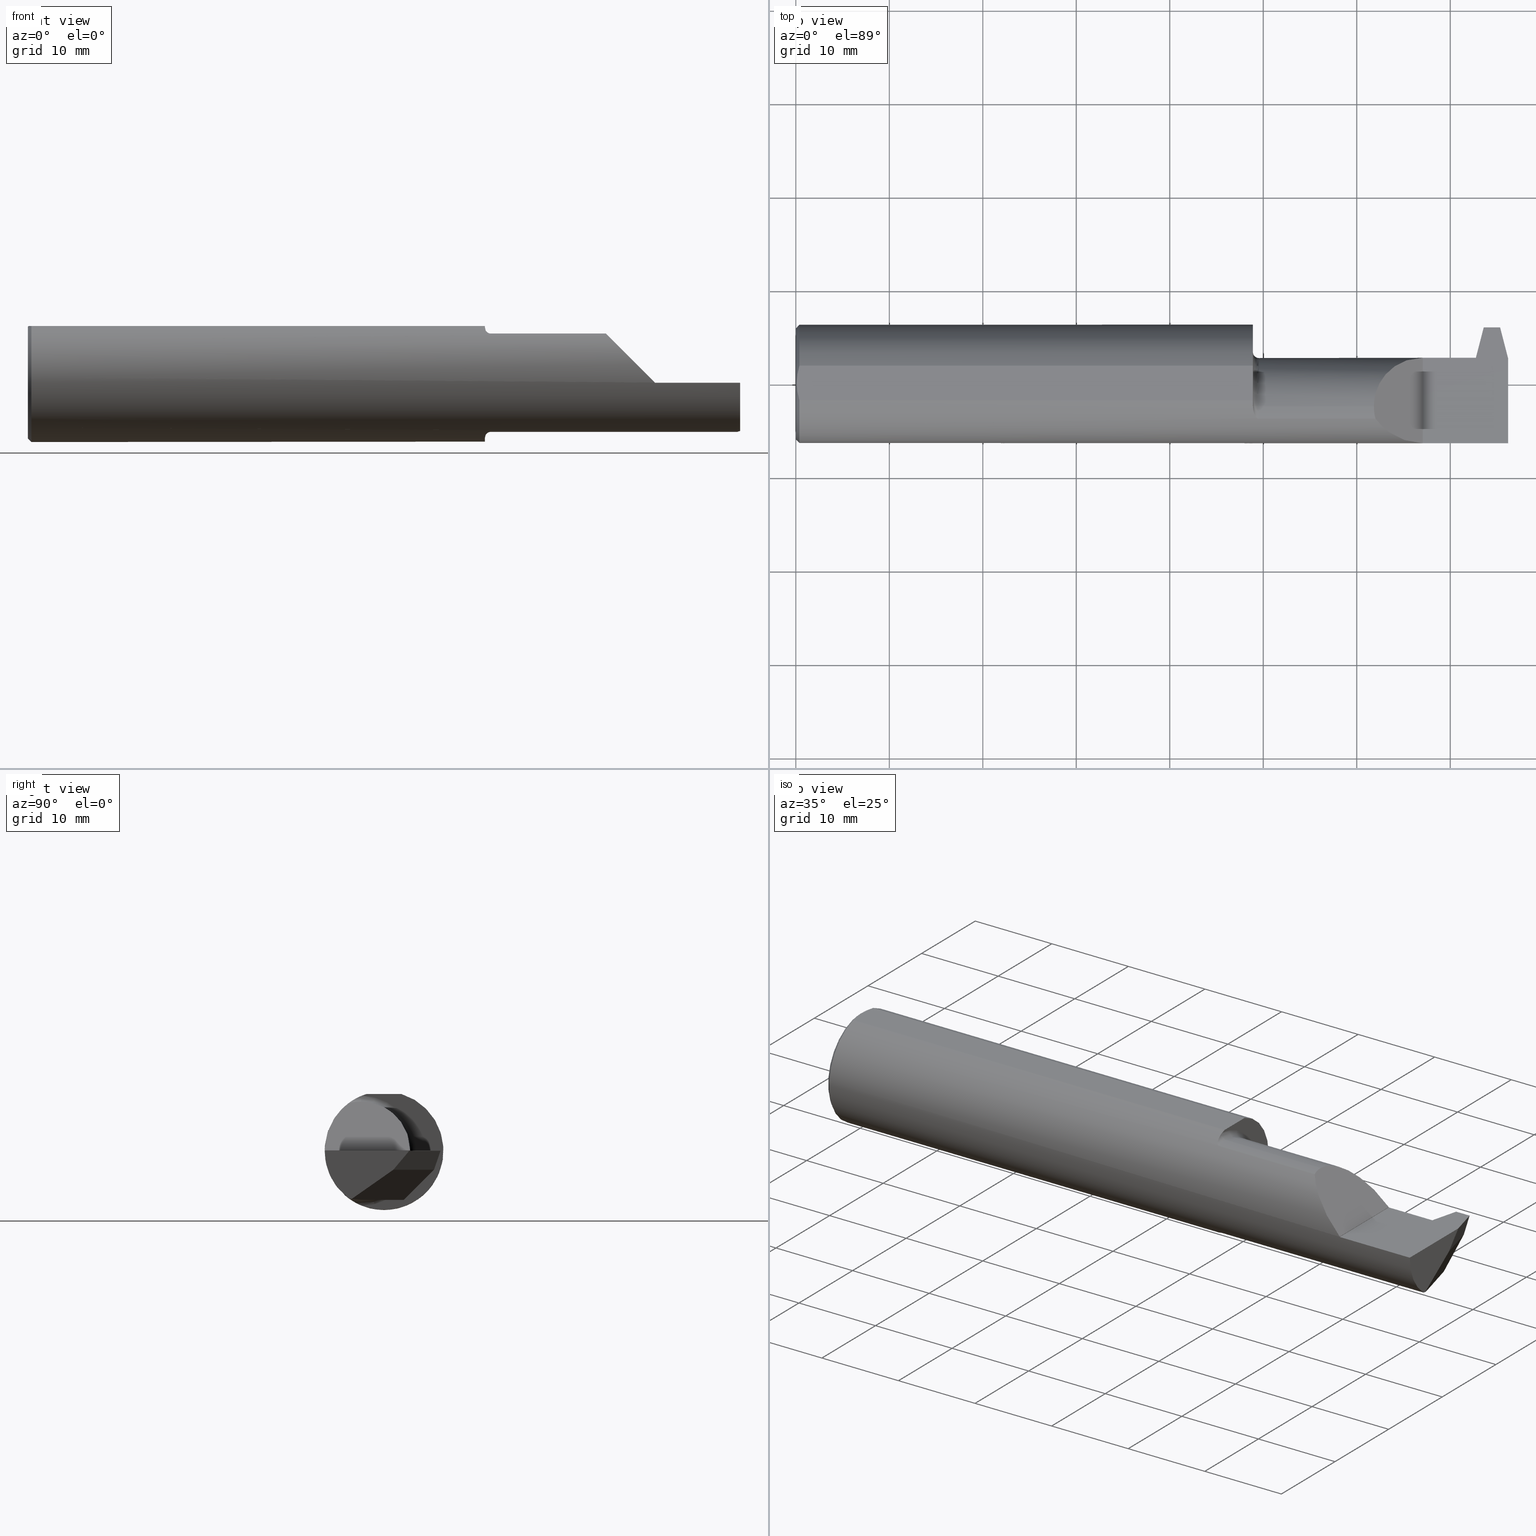
[diagram: canonical four-view strip — front | top / right | iso, engineering-drawing reading convention]
A machine part, canonical four-view strip (front | top / right | iso — engineering-drawing reading convention). The complete STEP part file that produces these views, byte-faithful:
ISO-10303-21;
HEADER;
FILE_DESCRIPTION (( 'STEP AP203' ),
    '1' );
FILE_NAME ('231072-FAT4901000-5.STEP',
    '2024-05-24T15:40:06',
    ( '' ),
    ( '' ),
    'SwSTEP 2.0',
    'SolidWorks 2022',
    '' );
FILE_SCHEMA (( 'CONFIG_CONTROL_DESIGN' ));
ENDSEC;

DATA;
#1 = VECTOR ( 'NONE', #708, 39.37007874015748143 ) ;
#2 = DIRECTION ( 'NONE',  ( 0.000000000000000000, -1.000000000000000000, 0.000000000000000000 ) ) ;
#3 = DIRECTION ( 'NONE',  ( 0.2503800040544334471, -0.9681476403781097417, 0.000000000000000000 ) ) ;
#4 = CALENDAR_DATE ( 2024, 24, 5 ) ;
#5 = VERTEX_POINT ( 'NONE', #46 ) ;
#6 = CARTESIAN_POINT ( 'NONE',  ( 2.795463962035230399, 0.8304646351436215657, -0.07999999999994880651 ) ) ;
#7 = CARTESIAN_POINT ( 'NONE',  ( 2.863896949202449527, 0.09334967799372900776, -0.07999999999999224398 ) ) ;
#8 = AXIS2_PLACEMENT_3D ( 'NONE', #371, #857, #209 ) ;
#9 = VECTOR ( 'NONE', #52, 39.37007874015748143 ) ;
#10 = EDGE_LOOP ( 'NONE', ( #453, #625 ) ) ;
#11 = EDGE_CURVE ( 'NONE', #18, #546, #97, .T. ) ;
#12 = ORIENTED_EDGE ( 'NONE', *, *, #883, .F. ) ;
#13 = ADVANCED_FACE ( 'NONE', ( #397 ), #762, .F. ) ;
#14 = ORGANIZATION ( 'UNSPECIFIED', 'UNSPECIFIED', '' ) ;
#15 = VECTOR ( 'NONE', #680, 39.37007874015748143 ) ;
#16 = PRODUCT_DEFINITION ( 'UNKNOWN', '', #134, #47 ) ;
#17 = CARTESIAN_POINT ( 'NONE',  ( 2.988377121087915977, -0.09685000000000003328, -0.2069999999999999341 ) ) ;
#18 = VERTEX_POINT ( 'NONE', #688 ) ;
#19 = CARTESIAN_POINT ( 'NONE',  ( 1.950000000000000178, -0.09684999999999999165, -0.2070000000000000173 ) ) ;
#20 = ORIENTED_EDGE ( 'NONE', *, *, #533, .F. ) ;
#21 = EDGE_CURVE ( 'NONE', #840, #251, #521, .T. ) ;
#22 = CARTESIAN_POINT ( 'NONE',  ( 1.925056834358316316, -0.09684999999998002151, -0.2303152187763627956 ) ) ;
#23 = EDGE_CURVE ( 'NONE', #37, #337, #227, .T. ) ;
#24 = DIRECTION ( 'NONE',  ( 0.000000000000000000, 0.000000000000000000, -1.000000000000000000 ) ) ;
#25 = CARTESIAN_POINT ( 'NONE',  ( 1.925361372780716840, -0.1075719347965366363, -0.2258065311153257260 ) ) ;
#26 = VECTOR ( 'NONE', #48, 39.37007874015748143 ) ;
#27 = CARTESIAN_POINT ( 'NONE',  ( 2.856905148354085711, 0.09266310188211818177, -0.08326934739156957588 ) ) ;
#28 = FACE_OUTER_BOUND ( 'NONE', #162, .T. ) ;
#29 = EDGE_LOOP ( 'NONE', ( #788, #193, #409, #207 ) ) ;
#30 = DIRECTION ( 'NONE',  ( 0.000000000000000000, -0.8191520442889890230, -0.5735764363510501562 ) ) ;
#31 = DIRECTION ( 'NONE',  ( 1.000000000000000000, 0.000000000000000000, 0.000000000000000000 ) ) ;
#32 = ORIENTED_EDGE ( 'NONE', *, *, #887, .F. ) ;
#33 = AXIS2_PLACEMENT_3D ( 'NONE', #520, #2, #293 ) ;
#34 = FACE_OUTER_BOUND ( 'NONE', #805, .T. ) ;
#35 = ORIENTED_EDGE ( 'NONE', *, *, #696, .F. ) ;
#36 = DIRECTION ( 'NONE',  ( 0.000000000000000000, 0.000000000000000000, -1.000000000000000000 ) ) ;
#37 = VERTEX_POINT ( 'NONE', #773 ) ;
#38 = EDGE_CURVE ( 'NONE', #398, #763, #432, .T. ) ;
#39 = ORIENTED_EDGE ( 'NONE', *, *, #766, .T. ) ;
#40 = DIRECTION ( 'NONE',  ( 0.2503800040544335026, -0.9681476403781097417, 0.000000000000000000 ) ) ;
#41 = CARTESIAN_POINT ( 'NONE',  ( 1.939875278575877937, -0.1451430425960587578, 0.2033773245914853312 ) ) ;
#42 = ADVANCED_FACE ( 'NONE', ( #431 ), #68, .T. ) ;
#43 = CC_DESIGN_APPROVAL ( #906, ( #294 ) ) ;
#44 = ORIENTED_EDGE ( 'NONE', *, *, #791, .F. ) ;
#45 = DIRECTION ( 'NONE',  ( 1.000000000000000000, 0.000000000000000000, 0.000000000000000000 ) ) ;
#46 = CARTESIAN_POINT ( 'NONE',  ( 0.01500000000000188856, 0.000000000000000000, -0.2498499999999999888 ) ) ;
#47 = DESIGN_CONTEXT ( 'detailed design', #867, 'design' ) ;
#48 = DIRECTION ( 'NONE',  ( 0.000000000000000000, -1.000000000000000000, 0.000000000000000000 ) ) ;
#49 = VERTEX_POINT ( 'NONE', #212 ) ;
#50 = EDGE_CURVE ( 'NONE', #555, #874, #929, .T. ) ;
#51 = AXIS2_PLACEMENT_3D ( 'NONE', #847, #197, #40 ) ;
#52 = DIRECTION ( 'NONE',  ( -1.000000000000000000, -0.000000000000000000, -0.000000000000000000 ) ) ;
#53 = ORIENTED_EDGE ( 'NONE', *, *, #120, .T. ) ;
#54 = DIRECTION ( 'NONE',  ( 0.000000000000000000, 0.000000000000000000, 1.000000000000000000 ) ) ;
#55 = ORIENTED_EDGE ( 'NONE', *, *, #766, .F. ) ;
#56 = COORDINATED_UNIVERSAL_TIME_OFFSET ( 8, 0, .BEHIND. ) ;
#57 = DIRECTION ( 'NONE',  ( 1.000000000000000000, 0.000000000000000000, 0.000000000000000000 ) ) ;
#58 = CARTESIAN_POINT ( 'NONE',  ( 1.925362334957246402, -0.1076058103047661113, 0.2257922861036848194 ) ) ;
#59 = DIRECTION ( 'NONE',  ( 0.000000000000000000, 0.000000000000000000, -1.000000000000000000 ) ) ;
#60 = AXIS2_PLACEMENT_3D ( 'NONE', #247, #611, #900 ) ;
#61 = VERTEX_POINT ( 'NONE', #722 ) ;
#62 = CARTESIAN_POINT ( 'NONE',  ( 1.925000000000000266, 0.000000000000000000, 0.000000000000000000 ) ) ;
#63 = CARTESIAN_POINT ( 'NONE',  ( 1.925000000000000266, -0.09685000000000000553, 0.000000000000000000 ) ) ;
#64 = LINE ( 'NONE', #566, #808 ) ;
#65 = VERTEX_POINT ( 'NONE', #786 ) ;
#66 = DIRECTION ( 'NONE',  ( 0.000000000000000000, 0.000000000000000000, 1.000000000000000000 ) ) ;
#67 = CARTESIAN_POINT ( 'NONE',  ( 0.004000000000001630723, -8.838795635097487697E-18, 0.2388499999999999790 ) ) ;
#68 = CYLINDRICAL_SURFACE ( 'NONE', #587, 0.2070000000000000173 ) ;
#69 = CARTESIAN_POINT ( 'NONE',  ( 2.640000000000000124, 0.2999999999999999889, -6.123031769111886291E-17 ) ) ;
#70 = VERTEX_POINT ( 'NONE', #72 ) ;
#71 = DIRECTION ( 'NONE',  ( 0.000000000000000000, 1.000000000000000000, -1.224646799147353207E-16 ) ) ;
#72 = CARTESIAN_POINT ( 'NONE',  ( 1.925000000000000266, 0.07331916529803135518, 0.2388499999999999790 ) ) ;
#73 = CARTESIAN_POINT ( 'NONE',  ( 2.876905148354085728, 4.760531160170139664, 3.187995656012730716 ) ) ;
#74 = APPROVAL_DATE_TIME ( #944, #284 ) ;
#75 = CARTESIAN_POINT ( 'NONE',  ( 3.000000000000000444, 0.06262552473440174960, -0.05252660777181117346 ) ) ;
#76 = CIRCLE ( 'NONE', #315, 0.2498499999999999888 ) ;
#77 = CARTESIAN_POINT ( 'NONE',  ( 1.925056834358316316, -0.09684999999998002151, -0.2303152187763627956 ) ) ;
#78 = EDGE_CURVE ( 'NONE', #664, #742, #821, .T. ) ;
#79 = EDGE_LOOP ( 'NONE', ( #395, #577, #215, #417, #633, #486 ) ) ;
#80 = CARTESIAN_POINT ( 'NONE',  ( 3.000000000000000444, -0.08802511886252954720, -0.2069999999999999341 ) ) ;
#81 = DIRECTION ( 'NONE',  ( 1.000000000000000000, 0.000000000000000000, 0.000000000000000000 ) ) ;
#82 = VECTOR ( 'NONE', #368, 39.37007874015748143 ) ;
#83 = SECURITY_CLASSIFICATION_LEVEL ( 'unclassified' ) ;
#84 = VECTOR ( 'NONE', #832, 39.37007874015748143 ) ;
#85 = ORIENTED_EDGE ( 'NONE', *, *, #662, .T. ) ;
#86 = VERTEX_POINT ( 'NONE', #218 ) ;
#87 =( GEOMETRIC_REPRESENTATION_CONTEXT ( 3 ) GLOBAL_UNCERTAINTY_ASSIGNED_CONTEXT ( ( #911 ) ) GLOBAL_UNIT_ASSIGNED_CONTEXT ( ( #499, #868, #578 ) ) REPRESENTATION_CONTEXT ( 'NONE', 'WORKASPACE' ) );
#88 = CARTESIAN_POINT ( 'NONE',  ( 1.950000000000000178, -0.1494886164171399245, -0.2001953447552894949 ) ) ;
#89 = EDGE_LOOP ( 'NONE', ( #912, #109, #498, #434, #285 ) ) ;
#90 = ADVANCED_FACE ( 'NONE', ( #267 ), #198, .F. ) ;
#91 = DIRECTION ( 'NONE',  ( -0.9116190025285768606, 0.2357607042868716807, -0.3367011798954093749 ) ) ;
#92 = LINE ( 'NONE', #180, #15 ) ;
#93 = LINE ( 'NONE', #677, #1 ) ;
#94 = VECTOR ( 'NONE', #741, 39.37007874015748143 ) ;
#95 = ORIENTED_EDGE ( 'NONE', *, *, #280, .F. ) ;
#96 = CARTESIAN_POINT ( 'NONE',  ( 2.991809236970782049, -0.1101210074274882600, -0.2069999999999999618 ) ) ;
#97 = LINE ( 'NONE', #327, #558 ) ;
#98 = VECTOR ( 'NONE', #341, 39.37007874015748143 ) ;
#99 = ADVANCED_FACE ( 'NONE', ( #707 ), #132, .F. ) ;
#100 = EDGE_LOOP ( 'NONE', ( #340, #831, #380, #621 ) ) ;
#101 = CARTESIAN_POINT ( 'NONE',  ( 0.01500000000000188856, 0.000000000000000000, -0.2498499999999999888 ) ) ;
#102 = DIRECTION ( 'NONE',  ( 0.000000000000000000, 0.000000000000000000, 1.000000000000000000 ) ) ;
#103 = ORIENTED_EDGE ( 'NONE', *, *, #280, .T. ) ;
#104 = DIRECTION ( 'NONE',  ( 1.000000000000000000, 0.000000000000000000, 0.000000000000000000 ) ) ;
#105 = DIRECTION ( 'NONE',  ( -0.000000000000000000, 5.769128905172341190E-16, 1.000000000000000000 ) ) ;
#106 = PRODUCT_RELATED_PRODUCT_CATEGORY ( 'detail', '', ( #614 ) ) ;
#107 = ADVANCED_FACE ( 'NONE', ( #127 ), #274, .F. ) ;
#108 = CC_DESIGN_PERSON_AND_ORGANIZATION_ASSIGNMENT ( #365, #147, ( #16 ) ) ;
#109 = ORIENTED_EDGE ( 'NONE', *, *, #116, .F. ) ;
#110 = PLANE ( 'NONE',  #51 ) ;
#111 = CARTESIAN_POINT ( 'NONE',  ( 1.947020367144871145, -0.1494886164171399245, 0.2001953447552894672 ) ) ;
#112 = ADVANCED_FACE ( 'NONE', ( #854 ), #205, .F. ) ;
#113 = VERTEX_POINT ( 'NONE', #935 ) ;
#114 = LINE ( 'NONE', #616, #9 ) ;
#115 = ORIENTED_EDGE ( 'NONE', *, *, #23, .F. ) ;
#116 = EDGE_CURVE ( 'NONE', #414, #769, #373, .T. ) ;
#117 = ORIENTED_EDGE ( 'NONE', *, *, #527, .T. ) ;
#118 = CARTESIAN_POINT ( 'NONE',  ( 2.856905148354085711, 0.09334967799372900776, -0.07999999999999224398 ) ) ;
#119 = DIRECTION ( 'NONE',  ( 0.000000000000000000, 1.814633329124812327E-15, -1.000000000000000000 ) ) ;
#120 = EDGE_CURVE ( 'NONE', #370, #667, #243, .T. ) ;
#121 = CARTESIAN_POINT ( 'NONE',  ( 1.925000000000000266, 0.1000000000000000056, 0.2388499999999999790 ) ) ;
#122 = ORIENTED_EDGE ( 'NONE', *, *, #630, .T. ) ;
#123 = APPROVAL_ROLE ( '' ) ;
#124 = VECTOR ( 'NONE', #706, 39.37007874015748143 ) ;
#125 = CARTESIAN_POINT ( 'NONE',  ( 0.01500000000000188509, -0.07331916529803116089, 0.2388499999999999790 ) ) ;
#126 = VECTOR ( 'NONE', #563, 39.37007874015748854 ) ;
#127 = FACE_OUTER_BOUND ( 'NONE', #643, .T. ) ;
#128 = DIRECTION ( 'NONE',  ( -1.000000000000000000, -0.000000000000000000, -0.000000000000000000 ) ) ;
#129 = ORIENTED_EDGE ( 'NONE', *, *, #545, .F. ) ;
#130 = CARTESIAN_POINT ( 'NONE',  ( 1.950000000000000178, -0.09685000000000000553, 0.000000000000000000 ) ) ;
#131 = CARTESIAN_POINT ( 'NONE',  ( 1.925000000000000266, -0.09685000000000000553, 0.000000000000000000 ) ) ;
#132 = PLANE ( 'NONE',  #897 ) ;
#133 = CARTESIAN_POINT ( 'NONE',  ( 2.826410051084567776, 0.09266310188211814014, -0.08326934739156964527 ) ) ;
#134 = PRODUCT_DEFINITION_FORMATION_WITH_SPECIFIED_SOURCE ( 'ANY', '', #614, .NOT_KNOWN. ) ;
#135 = AXIS2_PLACEMENT_3D ( 'NONE', #383, #104, #320 ) ;
#136 = VERTEX_POINT ( 'NONE', #909 ) ;
#137 = CARTESIAN_POINT ( 'NONE',  ( 2.856905148354085711, 0.1101499999999999702, 1.200550468588536438E-18 ) ) ;
#138 = DIRECTION ( 'NONE',  ( -0.000000000000000000, 0.000000000000000000, 1.000000000000000000 ) ) ;
#139 = LINE ( 'NONE', #656, #891 ) ;
#140 = ORIENTED_EDGE ( 'NONE', *, *, #493, .T. ) ;
#141 = CALENDAR_DATE ( 2024, 24, 5 ) ;
#142 = EDGE_CURVE ( 'NONE', #546, #86, #405, .T. ) ;
#143 = DIRECTION ( 'NONE',  ( 1.000000000000000000, 0.000000000000000000, 0.000000000000000000 ) ) ;
#144 = EDGE_CURVE ( 'NONE', #136, #337, #114, .T. ) ;
#145 = CARTESIAN_POINT ( 'NONE',  ( 1.933621117101777198, -0.1369789607150102562, 0.2090142917562188285 ) ) ;
#146 = PLANE ( 'NONE',  #641 ) ;
#147 = PERSON_AND_ORGANIZATION_ROLE ( 'creator' ) ;
#148 = CARTESIAN_POINT ( 'NONE',  ( 2.859999999999999876, -0.08773859972319995870, -0.2067993771388006996 ) ) ;
#149 = EDGE_CURVE ( 'NONE', #65, #664, #820, .T. ) ;
#150 = DIRECTION ( 'NONE',  ( -0.000000000000000000, 0.000000000000000000, -1.000000000000000000 ) ) ;
#151 = DATE_AND_TIME ( #376, #446 ) ;
#152 = ORIENTED_EDGE ( 'NONE', *, *, #38, .F. ) ;
#153 = ADVANCED_FACE ( 'NONE', ( #266 ), #764, .F. ) ;
#154 = DIRECTION ( 'NONE',  ( 0.000000000000000000, 0.000000000000000000, -1.000000000000000000 ) ) ;
#155 = AXIS2_PLACEMENT_3D ( 'NONE', #348, #922, #850 ) ;
#156 = LINE ( 'NONE', #590, #195 ) ;
#157 = ORIENTED_EDGE ( 'NONE', *, *, #943, .F. ) ;
#158 = CIRCLE ( 'NONE', #665, 0.2498499999999999888 ) ;
#159 = EDGE_LOOP ( 'NONE', ( #767, #305, #540, #809 ) ) ;
#160 = PRODUCT_DEFINITION_SHAPE ( 'NONE', 'NONE',  #16 ) ;
#161 = DIRECTION ( 'NONE',  ( 0.2503800040544089667, 0.9681476403781160700, 1.077610383360487399E-13 ) ) ;
#162 = EDGE_LOOP ( 'NONE', ( #482, #886, #95, #835, #12 ) ) ;
#163 = CIRCLE ( 'NONE', #692, 0.2070000000000000173 ) ;
#164 = EDGE_CURVE ( 'NONE', #370, #65, #190, .T. ) ;
#165 = PERSON ( 'UNSPECIFIED', 'UNSPECIFIED', 'UNSPECIFIED', ('UNSPECIFIED'), ('UNSPECIFIED'), ('UNSPECIFIED') ) ;
#166 = LINE ( 'NONE', #304, #544 ) ;
#167 = CARTESIAN_POINT ( 'NONE',  ( 0.000000000000000000, 0.000000000000000000, -0.2348499999999984211 ) ) ;
#168 = LINE ( 'NONE', #761, #471 ) ;
#169 = AXIS2_PLACEMENT_3D ( 'NONE', #694, #45, #772 ) ;
#170 = CARTESIAN_POINT ( 'NONE',  ( 1.925056834358316760, -0.09685000000000180964, 0.2303152187763536918 ) ) ;
#171 = DIRECTION ( 'NONE',  ( 1.000000000000000000, 0.000000000000000000, 0.000000000000000000 ) ) ;
#172 = EDGE_CURVE ( 'NONE', #667, #37, #487, .T. ) ;
#173 = CARTESIAN_POINT ( 'NONE',  ( 3.000000000000000444, -0.2498499999999999055, -6.123031769111886291E-17 ) ) ;
#174 = ORIENTED_EDGE ( 'NONE', *, *, #630, .F. ) ;
#175 = DIRECTION ( 'NONE',  ( 0.000000000000000000, 0.000000000000000000, -1.000000000000000000 ) ) ;
#176 = AXIS2_PLACEMENT_3D ( 'NONE', #759, #171, #24 ) ;
#177 = ADVANCED_FACE ( 'NONE', ( #255 ), #110, .F. ) ;
#178 = PLANE ( 'NONE',  #710 ) ;
#179 = ORIENTED_EDGE ( 'NONE', *, *, #211, .T. ) ;
#180 = CARTESIAN_POINT ( 'NONE',  ( 1.925000000000000044, 0.09266310188211666909, -0.08326934739157304532 ) ) ;
#181 = VERTEX_POINT ( 'NONE', #326 ) ;
#182 = ORIENTED_EDGE ( 'NONE', *, *, #257, .F. ) ;
#183 = CARTESIAN_POINT ( 'NONE',  ( 2.900103411012272758, 0.2501499999999999835, 0.000000000000000000 ) ) ;
#184 = ORIENTED_EDGE ( 'NONE', *, *, #382, .F. ) ;
#185 = VERTEX_POINT ( 'NONE', #118 ) ;
#186 = CARTESIAN_POINT ( 'NONE',  ( 3.000000000000000444, 0.08360379093681982732, -0.2070000000000000451 ) ) ;
#187 = ORIENTED_EDGE ( 'NONE', *, *, #650, .F. ) ;
#188 = EDGE_CURVE ( 'NONE', #701, #5, #609, .T. ) ;
#189 = ORIENTED_EDGE ( 'NONE', *, *, #216, .F. ) ;
#190 = LINE ( 'NONE', #700, #84 ) ;
#191 = CARTESIAN_POINT ( 'NONE',  ( 2.856905148354085711, -0.09685000000000000553, 0.000000000000000000 ) ) ;
#192 = LINE ( 'NONE', #571, #377 ) ;
#193 = ORIENTED_EDGE ( 'NONE', *, *, #662, .F. ) ;
#194 = PERSON_AND_ORGANIZATION ( #165, #14 ) ;
#195 = VECTOR ( 'NONE', #223, 39.37007874015748143 ) ;
#196 = CARTESIAN_POINT ( 'NONE',  ( 1.925000000000000266, -0.09282883324728960495, 0.2319651487140835522 ) ) ;
#197 = DIRECTION ( 'NONE',  ( -0.9474803064293680910, -0.2450350680735336462, 0.2055210070593989635 ) ) ;
#198 = PLANE ( 'NONE',  #338 ) ;
#199 = CARTESIAN_POINT ( 'NONE',  ( 2.843896949202449953, 0.1101499999999999563, 0.000000000000000000 ) ) ;
#200 = VERTEX_POINT ( 'NONE', #252 ) ;
#201 = CARTESIAN_POINT ( 'NONE',  ( 2.434350000000000680, -0.1146400775661694377, 0.2070000000000000451 ) ) ;
#202 = VECTOR ( 'NONE', #589, 39.37007874015748143 ) ;
#203 = LINE ( 'NONE', #272, #923 ) ;
#204 = AXIS2_PLACEMENT_3D ( 'NONE', #632, #903, #768 ) ;
#205 = PLANE ( 'NONE',  #666 ) ;
#206 = CARTESIAN_POINT ( 'NONE',  ( 0.000000000000000000, 2.967931517733600783E-17, 0.2348499999999984211 ) ) ;
#207 = ORIENTED_EDGE ( 'NONE', *, *, #885, .T. ) ;
#208 = PERSON_AND_ORGANIZATION ( #165, #14 ) ;
#209 = DIRECTION ( 'NONE',  ( 0.000000000000000000, 0.000000000000000000, 1.000000000000000000 ) ) ;
#210 =( BOUNDED_CURVE ( )  B_SPLINE_CURVE ( 3, ( #286, #201, #350, #220 ),
 .UNSPECIFIED., .F., .F. ) 
 B_SPLINE_CURVE_WITH_KNOTS ( ( 4, 4 ),
 ( 0.000000000000000000, 0.2571164291075390129 ),
 .UNSPECIFIED. ) 
 CURVE ( )  GEOMETRIC_REPRESENTATION_ITEM ( )  RATIONAL_B_SPLINE_CURVE ( ( 1.000000000000000000, 0.9944985117787172868, 0.9944985117787172868, 1.000000000000000000 ) ) 
 REPRESENTATION_ITEM ( '' )  );
#211 = EDGE_CURVE ( 'NONE', #555, #689, #551, .T. ) ;
#212 = CARTESIAN_POINT ( 'NONE',  ( 1.925056834358316316, -0.09684999999998002151, -0.2303152187763627956 ) ) ;
#213 = DIRECTION ( 'NONE',  ( -1.000000000000000000, 0.000000000000000000, 0.000000000000000000 ) ) ;
#214 = VECTOR ( 'NONE', #128, 39.37007874015748143 ) ;
#215 = ORIENTED_EDGE ( 'NONE', *, *, #781, .T. ) ;
#216 = EDGE_CURVE ( 'NONE', #113, #18, #495, .T. ) ;
#217 = CARTESIAN_POINT ( 'NONE',  ( 1.925056834358316760, -0.09685000000000180964, 0.2303152187763536918 ) ) ;
#218 = CARTESIAN_POINT ( 'NONE',  ( 2.897000000000000242, 0.2381499999999928674, -6.123031769111886291E-17 ) ) ;
#219 = CARTESIAN_POINT ( 'NONE',  ( 0.000000000000000000, 0.000000000000000000, 0.000000000000000000 ) ) ;
#220 = CARTESIAN_POINT ( 'NONE',  ( 2.441154655244710980, -0.1494886164171400911, 0.2001953447552893839 ) ) ;
#221 = CARTESIAN_POINT ( 'NONE',  ( 2.639999999999999236, 0.2381499999999971973, -6.123031769111886291E-17 ) ) ;
#222 = AXIS2_PLACEMENT_3D ( 'NONE', #509, #793, #36 ) ;
#223 = DIRECTION ( 'NONE',  ( -1.000000000000000000, -0.000000000000000000, -0.000000000000000000 ) ) ;
#224 = ADVANCED_FACE ( 'NONE', ( #483 ), #408, .T. ) ;
#225 = VERTEX_POINT ( 'NONE', #339 ) ;
#226 = DIRECTION ( 'NONE',  ( -1.000000000000000000, -8.537024980200908593E-16, 5.140971450490672194E-31 ) ) ;
#227 = CIRCLE ( 'NONE', #699, 0.2070000000000000173 ) ;
#228 = LINE ( 'NONE', #585, #444 ) ;
#229 = CIRCLE ( 'NONE', #879, 0.2320000000000000118 ) ;
#230 = ORIENTED_EDGE ( 'NONE', *, *, #750, .T. ) ;
#231 = AXIS2_PLACEMENT_3D ( 'NONE', #807, #374, #363 ) ;
#232 = ORIENTED_EDGE ( 'NONE', *, *, #21, .F. ) ;
#233 = CARTESIAN_POINT ( 'NONE',  ( 1.925000000000000266, -0.09282883324728960495, -0.2319651487140835522 ) ) ;
#234 = ORIENTED_EDGE ( 'NONE', *, *, #462, .F. ) ;
#235 = CC_DESIGN_PERSON_AND_ORGANIZATION_ASSIGNMENT ( #448, #734, ( #134 ) ) ;
#236 = CARTESIAN_POINT ( 'NONE',  ( 0.01500000000000188856, 0.07331916529803116089, 0.2388499999999999790 ) ) ;
#237 = CARTESIAN_POINT ( 'NONE',  ( 2.843896949202449953, 0.1101499999999999563, 0.000000000000000000 ) ) ;
#238 = ADVANCED_FACE ( 'NONE', ( #626 ), #913, .T. ) ;
#239 = CARTESIAN_POINT ( 'NONE',  ( 2.863896949202449527, 0.1101499999999999702, 0.000000000000000000 ) ) ;
#240 = PLANE ( 'NONE',  #594 ) ;
#241 = TOROIDAL_SURFACE ( 'NONE', #403, 0.2320000000000000118, 0.02500000000000000139 ) ;
#242 = ADVANCED_FACE ( 'NONE', ( #675 ), #755, .F. ) ;
#243 = CIRCLE ( 'NONE', #222, 0.2498499999999999888 ) ;
#244 = CARTESIAN_POINT ( 'NONE',  ( 2.863896949202449527, 0.1101499999999999702, -6.842741670802552310E-19 ) ) ;
#245 = LINE ( 'NONE', #281, #790 ) ;
#246 = ORIENTED_EDGE ( 'NONE', *, *, #785, .T. ) ;
#247 = CARTESIAN_POINT ( 'NONE',  ( 1.950000000000000178, -0.09685000000000000553, 0.000000000000000000 ) ) ;
#248 = ORIENTED_EDGE ( 'NONE', *, *, #556, .F. ) ;
#249 = LOCAL_TIME ( 8, 40, 6.000000000000000000, #428 ) ;
#250 = AXIS2_PLACEMENT_3D ( 'NONE', #569, #603, #318 ) ;
#251 = VERTEX_POINT ( 'NONE', #469 ) ;
#252 = CARTESIAN_POINT ( 'NONE',  ( 3.000000000000000444, 0.1066817547734303651, 0.000000000000000000 ) ) ;
#253 = ORIENTED_EDGE ( 'NONE', *, *, #449, .F. ) ;
#254 = ORIENTED_EDGE ( 'NONE', *, *, #116, .T. ) ;
#255 = FACE_OUTER_BOUND ( 'NONE', #400, .T. ) ;
#256 = ORIENTED_EDGE ( 'NONE', *, *, #287, .F. ) ;
#257 = EDGE_CURVE ( 'NONE', #756, #519, #634, .T. ) ;
#258 = ORIENTED_EDGE ( 'NONE', *, *, #624, .T. ) ;
#259 = CARTESIAN_POINT ( 'NONE',  ( 2.859999999999999876, 0.1101499999999999979, 0.000000000000000000 ) ) ;
#260 = ORIENTED_EDGE ( 'NONE', *, *, #437, .T. ) ;
#261 = DIRECTION ( 'NONE',  ( 0.2013133534504506772, 0.2013133534504514544, 0.9586166425871539554 ) ) ;
#262 = ORIENTED_EDGE ( 'NONE', *, *, #599, .F. ) ;
#263 = CALENDAR_DATE ( 2024, 24, 5 ) ;
#264 = CLOSED_SHELL ( 'NONE', ( #391, #242, #421, #907, #42, #485, #13, #803, #238, #153, #99, #224, #177, #591, #90, #676, #112, #481, #588, #818, #728, #461, #107, #312, #715, #415, #381, #298 ) ) ;
#265 = DIRECTION ( 'NONE',  ( -1.000000000000000000, -0.000000000000000000, -0.000000000000000000 ) ) ;
#266 = FACE_OUTER_BOUND ( 'NONE', #924, .T. ) ;
#267 = FACE_OUTER_BOUND ( 'NONE', #610, .T. ) ;
#268 = DIRECTION ( 'NONE',  ( 0.000000000000000000, -0.8191520442889890230, -0.5735764363510501562 ) ) ;
#269 = ORIENTED_EDGE ( 'NONE', *, *, #889, .F. ) ;
#270 = CARTESIAN_POINT ( 'NONE',  ( 2.434350000000000680, -0.09685000000000000553, 0.2070000000000000173 ) ) ;
#271 = VECTOR ( 'NONE', #261, 39.37007874015748854 ) ;
#272 = CARTESIAN_POINT ( 'NONE',  ( 2.900103411012272758, 0.2501499999999999835, 0.000000000000000000 ) ) ;
#273 = EDGE_CURVE ( 'NONE', #505, #301, #229, .T. ) ;
#274 = PLANE ( 'NONE',  #536 ) ;
#275 = CARTESIAN_POINT ( 'NONE',  ( 3.000000000000000444, -0.09685000000000000553, 0.000000000000000000 ) ) ;
#276 = ORIENTED_EDGE ( 'NONE', *, *, #720, .T. ) ;
#277 = DIRECTION ( 'NONE',  ( 1.000000000000000000, 0.000000000000000000, 0.000000000000000000 ) ) ;
#278 = CC_DESIGN_PERSON_AND_ORGANIZATION_ASSIGNMENT ( #738, #729, ( #294 ) ) ;
#279 = AXIS2_PLACEMENT_3D ( 'NONE', #898, #314, #102 ) ;
#280 = EDGE_CURVE ( 'NONE', #61, #572, #834, .T. ) ;
#281 = CARTESIAN_POINT ( 'NONE',  ( 3.000000000000000444, 0.05060993510442526183, -0.07227847794073193055 ) ) ;
#282 = CARTESIAN_POINT ( 'NONE',  ( 0.000000000000000000, 0.000000000000000000, 0.000000000000000000 ) ) ;
#283 = DIRECTION ( 'NONE',  ( 0.07805664651022488354, -0.7049493456751224629, -0.7049493456751303455 ) ) ;
#284 = APPROVAL ( #506, 'UNSPECIFIED' ) ;
#285 = ORIENTED_EDGE ( 'NONE', *, *, #493, .F. ) ;
#286 = CARTESIAN_POINT ( 'NONE',  ( 2.434350000000000680, -0.09685000000000000553, 0.2070000000000000173 ) ) ;
#287 = EDGE_CURVE ( 'NONE', #756, #689, #748, .T. ) ;
#288 = FACE_OUTER_BOUND ( 'NONE', #321, .T. ) ;
#289 = CARTESIAN_POINT ( 'NONE',  ( 1.926763007424507457, -0.1178923264691399686, 0.2205715275921999452 ) ) ;
#290 = LINE ( 'NONE', #73, #352 ) ;
#291 = VECTOR ( 'NONE', #936, 39.37007874015748143 ) ;
#292 = CARTESIAN_POINT ( 'NONE',  ( 2.434350000000000236, 0.02378168701430510151, 0.2070000000000000173 ) ) ;
#293 = DIRECTION ( 'NONE',  ( 0.000000000000000000, 0.000000000000000000, -1.000000000000000000 ) ) ;
#294 = SECURITY_CLASSIFICATION ( '', '', #83 ) ;
#295 = EDGE_CURVE ( 'NONE', #325, #546, #168, .T. ) ;
#296 = CARTESIAN_POINT ( 'NONE',  ( 2.988377121087915977, -0.09685000000000003328, -0.2069999999999999341 ) ) ;
#297 = ORIENTED_EDGE ( 'NONE', *, *, #23, .T. ) ;
#298 = ADVANCED_FACE ( 'NONE', ( #817 ), #604, .T. ) ;
#299 = DIRECTION ( 'NONE',  ( 0.000000000000000000, 0.000000000000000000, -1.000000000000000000 ) ) ;
#300 = DIRECTION ( 'NONE',  ( 1.000000000000000000, 8.537024980200913523E-16, -5.906448813158318790E-32 ) ) ;
#301 = VERTEX_POINT ( 'NONE', #233 ) ;
#302 = AXIS2_PLACEMENT_3D ( 'NONE', #62, #631, #784 ) ;
#303 = ORIENTED_EDGE ( 'NONE', *, *, #387, .F. ) ;
#304 = CARTESIAN_POINT ( 'NONE',  ( 2.859999999999999876, 0.1422105680985483733, -0.04578723642496119323 ) ) ;
#305 = ORIENTED_EDGE ( 'NONE', *, *, #11, .F. ) ;
#306 = EDGE_CURVE ( 'NONE', #689, #18, #671, .T. ) ;
#307 = LINE ( 'NONE', #597, #94 ) ;
#308 = APPROVAL_ROLE ( '' ) ;
#309 = ORIENTED_EDGE ( 'NONE', *, *, #812, .F. ) ;
#310 = APPLICATION_CONTEXT ( 'configuration controlled 3d designs of mechanical parts and assemblies' ) ;
#311 = CARTESIAN_POINT ( 'NONE',  ( 1.931527936142123592, -0.1322095316791235264, -0.2120777013314376347 ) ) ;
#312 = ADVANCED_FACE ( 'NONE', ( #537 ), #541, .F. ) ;
#313 = EDGE_CURVE ( 'NONE', #916, #615, #166, .T. ) ;
#314 = DIRECTION ( 'NONE',  ( -1.000000000000000000, -0.000000000000000000, -0.000000000000000000 ) ) ;
#315 = AXIS2_PLACEMENT_3D ( 'NONE', #472, #539, #59 ) ;
#316 = DIRECTION ( 'NONE',  ( -0.000000000000000000, 0.000000000000000000, 1.000000000000000000 ) ) ;
#317 = DIRECTION ( 'NONE',  ( 0.000000000000000000, 0.000000000000000000, 1.000000000000000000 ) ) ;
#318 = DIRECTION ( 'NONE',  ( 0.000000000000000000, 0.000000000000000000, -1.000000000000000000 ) ) ;
#319 = ORIENTED_EDGE ( 'NONE', *, *, #313, .F. ) ;
#320 = DIRECTION ( 'NONE',  ( 0.000000000000000000, 0.000000000000000000, -1.000000000000000000 ) ) ;
#321 = EDGE_LOOP ( 'NONE', ( #530, #559, #404, #827, #637, #670, #349, #586, #129, #470, #765, #246, #407, #484, #695, #739 ) ) ;
#322 = AXIS2_PLACEMENT_3D ( 'NONE', #584, #71, #430 ) ;
#323 = ORIENTED_EDGE ( 'NONE', *, *, #344, .T. ) ;
#324 = CYLINDRICAL_SURFACE ( 'NONE', #896, 0.2070000000000000173 ) ;
#325 = VERTEX_POINT ( 'NONE', #894 ) ;
#326 = CARTESIAN_POINT ( 'NONE',  ( 2.640000000000000124, 0.1101499999999999702, -6.123031769111885058E-17 ) ) ;
#327 = CARTESIAN_POINT ( 'NONE',  ( 2.850128570000003414, 0.2106037909368215222, -0.07999999999999690692 ) ) ;
#328 = LOCAL_TIME ( 8, 40, 6.000000000000000000, #56 ) ;
#329 = ORIENTED_EDGE ( 'NONE', *, *, #889, .T. ) ;
#330 = DIRECTION ( 'NONE',  ( 1.000000000000000000, 0.000000000000000000, 0.000000000000000000 ) ) ;
#331 = CARTESIAN_POINT ( 'NONE',  ( 1.938126455499453504, -0.1431912086441300413, 0.2047622941394795781 ) ) ;
#332 = EDGE_LOOP ( 'NONE', ( #309, #276, #85, #553, #319, #838 ) ) ;
#333 = CARTESIAN_POINT ( 'NONE',  ( 2.392500000000000071, -0.1494886164171399245, -0.2001953447552894949 ) ) ;
#334 = ORIENTED_EDGE ( 'NONE', *, *, #344, .F. ) ;
#335 = B_SPLINE_CURVE_WITH_KNOTS ( 'NONE', 3,
 ( #217, #440, #655, #726 ),
 .UNSPECIFIED., .F., .F.,
 ( 4, 4 ),
 ( 0.001785983475866874436, 0.001896829427359323760 ),
 .UNSPECIFIED. ) ;
#336 = CARTESIAN_POINT ( 'NONE',  ( 2.863896949202449527, 0.1101499999999999702, 0.000000000000000000 ) ) ;
#337 = VERTEX_POINT ( 'NONE', #19 ) ;
#338 = AXIS2_PLACEMENT_3D ( 'NONE', #712, #496, #358 ) ;
#339 = CARTESIAN_POINT ( 'NONE',  ( 1.950000000000000178, -0.09685000000000000553, 0.2070000000000000173 ) ) ;
#340 = ORIENTED_EDGE ( 'NONE', *, *, #682, .F. ) ;
#341 = DIRECTION ( 'NONE',  ( -0.1571540165094715835, 0.2029672248372561827, 0.9664920696709329295 ) ) ;
#342 = ORIENTED_EDGE ( 'NONE', *, *, #606, .T. ) ;
#343 = APPROVAL_DATE_TIME ( #705, #480 ) ;
#344 = EDGE_CURVE ( 'NONE', #370, #200, #307, .T. ) ;
#345 = CARTESIAN_POINT ( 'NONE',  ( 0.004000000000001630723, -8.838795635097487697E-18, 0.2388499999999999790 ) ) ;
#346 = VECTOR ( 'NONE', #531, 39.37007874015748854 ) ;
#347 = DIRECTION ( 'NONE',  ( 0.000000000000000000, -0.2055210070593990190, -0.9786527043120508695 ) ) ;
#348 = CARTESIAN_POINT ( 'NONE',  ( 2.835000000000000409, 0.2906037909368175409, 0.000000000000000000 ) ) ;
#349 = ORIENTED_EDGE ( 'NONE', *, *, #38, .T. ) ;
#350 = CARTESIAN_POINT ( 'NONE',  ( 2.436630766022311434, -0.1322833472790598819, 0.2047192339776892356 ) ) ;
#351 = EDGE_CURVE ( 'NONE', #49, #37, #620, .T. ) ;
#352 = VECTOR ( 'NONE', #799, 39.37007874015748143 ) ;
#353 = CARTESIAN_POINT ( 'NONE',  ( 3.000000000000000444, -0.1363579360798492235, -0.2031947907469837944 ) ) ;
#354 = CARTESIAN_POINT ( 'NONE',  ( 2.640000000000000124, 0.2999999999999999889, -6.123031769111886291E-17 ) ) ;
#355 = CARTESIAN_POINT ( 'NONE',  ( 2.837854847910429967, 0.1101499999999999979, -0.02877135945258273153 ) ) ;
#356 = VERTEX_POINT ( 'NONE', #237 ) ;
#357 = LINE ( 'NONE', #80, #934 ) ;
#358 = DIRECTION ( 'NONE',  ( -1.000000000000000000, 0.000000000000000000, 0.000000000000000000 ) ) ;
#359 = FACE_OUTER_BOUND ( 'NONE', #593, .T. ) ;
#360 = ORIENTED_EDGE ( 'NONE', *, *, #917, .T. ) ;
#361 = LENGTH_MEASURE_WITH_UNIT ( LENGTH_MEASURE( 0.02539999999999999897 ), #435 );
#362 = DIRECTION ( 'NONE',  ( -0.000000000000000000, 1.000000000000000000, -0.000000000000000000 ) ) ;
#363 = DIRECTION ( 'NONE',  ( 0.000000000000000000, 0.000000000000000000, -1.000000000000000000 ) ) ;
#364 = EDGE_CURVE ( 'NONE', #840, #814, #92, .T. ) ;
#365 = PERSON_AND_ORGANIZATION ( #165, #14 ) ;
#366 = ORIENTED_EDGE ( 'NONE', *, *, #750, .F. ) ;
#367 = AXIS2_PLACEMENT_3D ( 'NONE', #219, #860, #794 ) ;
#368 = DIRECTION ( 'NONE',  ( -0.2503800040544219563, 0.9681476403781128504, 5.650365557287442810E-14 ) ) ;
#369 = CARTESIAN_POINT ( 'NONE',  ( 1.925019000533665592, -0.09551797825495939032, -0.2308753480925707924 ) ) ;
#370 = VERTEX_POINT ( 'NONE', #173 ) ;
#371 = CARTESIAN_POINT ( 'NONE',  ( 3.000000000000000444, 0.000000000000000000, 0.000000000000000000 ) ) ;
#372 = VECTOR ( 'NONE', #473, 39.37007874015748143 ) ;
#373 = CIRCLE ( 'NONE', #873, 0.2348499999999984211 ) ;
#374 = DIRECTION ( 'NONE',  ( 1.000000000000000000, 0.000000000000000000, 0.000000000000000000 ) ) ;
#375 = ORIENTED_EDGE ( 'NONE', *, *, #452, .T. ) ;
#376 = CALENDAR_DATE ( 2024, 24, 5 ) ;
#377 = VECTOR ( 'NONE', #490, 39.37007874015748143 ) ;
#378 = TOROIDAL_SURFACE ( 'NONE', #176, 0.2320000000000000118, 0.02500000000000000139 ) ;
#379 = CC_DESIGN_PERSON_AND_ORGANIZATION_ASSIGNMENT ( #744, #881, ( #134 ) ) ;
#380 = ORIENTED_EDGE ( 'NONE', *, *, #149, .F. ) ;
#381 = ADVANCED_FACE ( 'NONE', ( #389 ), #240, .T. ) ;
#382 = EDGE_CURVE ( 'NONE', #519, #709, #245, .T. ) ;
#383 = CARTESIAN_POINT ( 'NONE',  ( 2.856905148354085711, 4.760531160170139664, 3.187995656012730716 ) ) ;
#384 = COORDINATED_UNIVERSAL_TIME_OFFSET ( 8, 0, .BEHIND. ) ;
#385 = ORIENTED_EDGE ( 'NONE', *, *, #287, .T. ) ;
#386 = CARTESIAN_POINT ( 'NONE',  ( 2.963839195668922066, 0.2834708276858486919, -0.007132963250968961735 ) ) ;
#387 = EDGE_CURVE ( 'NONE', #479, #86, #203, .T. ) ;
#388 = DIRECTION ( 'NONE',  ( 1.000000000000000000, 0.000000000000000000, 0.000000000000000000 ) ) ;
#389 = FACE_OUTER_BOUND ( 'NONE', #332, .T. ) ;
#390 = AXIS2_PLACEMENT_3D ( 'NONE', #824, #105, #681 ) ;
#391 = ADVANCED_FACE ( 'NONE', ( #751 ), #378, .F. ) ;
#392 = LINE ( 'NONE', #504, #271 ) ;
#393 = CARTESIAN_POINT ( 'NONE',  ( 1.950000000000000178, -0.1494886164171399245, 0.2001953447552894949 ) ) ;
#394 = CIRCLE ( 'NONE', #789, 0.2069999999999999618 ) ;
#395 = ORIENTED_EDGE ( 'NONE', *, *, #606, .F. ) ;
#396 = CARTESIAN_POINT ( 'NONE',  ( 0.008000051362619074735, 0.04946541355466502199, 0.2388499999999999790 ) ) ;
#397 = FACE_OUTER_BOUND ( 'NONE', #735, .T. ) ;
#398 = VERTEX_POINT ( 'NONE', #393 ) ;
#399 = PLANE ( 'NONE',  #811 ) ;
#400 = EDGE_LOOP ( 'NONE', ( #714, #189, #230, #760 ) ) ;
#401 = DIRECTION ( 'NONE',  ( -0.9786527043120508695, -3.055463344878836037E-15, 0.2055210070593990190 ) ) ;
#402 = DIRECTION ( 'NONE',  ( -1.000000000000000000, -0.000000000000000000, -0.000000000000000000 ) ) ;
#403 = AXIS2_PLACEMENT_3D ( 'NONE', #927, #57, #893 ) ;
#404 = ORIENTED_EDGE ( 'NONE', *, *, #164, .T. ) ;
#405 = LINE ( 'NONE', #413, #126 ) ;
#406 = ORIENTED_EDGE ( 'NONE', *, *, #295, .F. ) ;
#407 = ORIENTED_EDGE ( 'NONE', *, *, #892, .T. ) ;
#408 = PLANE ( 'NONE',  #169 ) ;
#409 = ORIENTED_EDGE ( 'NONE', *, *, #295, .T. ) ;
#410 = LINE ( 'NONE', #841, #580 ) ;
#411 = EDGE_LOOP ( 'NONE', ( #375, #629, #360, #920, #157, #856, #679, #647, #595, #683, #672 ) ) ;
#412 = EDGE_LOOP ( 'NONE', ( #122, #303, #44, #234, #910, #904, #323, #366 ) ) ;
#413 = CARTESIAN_POINT ( 'NONE',  ( 2.920156025113222586, 0.1757926836392792458, -0.1810987964774560255 ) ) ;
#414 = VERTEX_POINT ( 'NONE', #167 ) ;
#415 = ADVANCED_FACE ( 'NONE', ( #822 ), #178, .T. ) ;
#416 = CARTESIAN_POINT ( 'NONE',  ( 1.925000000000000266, -0.09685000000000000553, 0.000000000000000000 ) ) ;
#417 = ORIENTED_EDGE ( 'NONE', *, *, #791, .T. ) ;
#418 = CALENDAR_DATE ( 2024, 24, 5 ) ;
#419 = VECTOR ( 'NONE', #836, 39.37007874015748143 ) ;
#420 = FACE_OUTER_BOUND ( 'NONE', #693, .T. ) ;
#421 = ADVANCED_FACE ( 'NONE', ( #28 ), #830, .T. ) ;
#422 = FACE_OUTER_BOUND ( 'NONE', #159, .T. ) ;
#423 = ORIENTED_EDGE ( 'NONE', *, *, #273, .F. ) ;
#424 = LINE ( 'NONE', #826, #372 ) ;
#425 = VECTOR ( 'NONE', #815, 39.37007874015748854 ) ;
#426 = CARTESIAN_POINT ( 'NONE',  ( 2.560176953520660437, -0.2494150432560469088, 0.08117304647933933082 ) ) ;
#427 = ORIENTED_EDGE ( 'NONE', *, *, #522, .T. ) ;
#428 = COORDINATED_UNIVERSAL_TIME_OFFSET ( 8, 0, .BEHIND. ) ;
#429 = DIMENSIONAL_EXPONENTS ( 1.000000000000000000, 0.000000000000000000, 0.000000000000000000, 0.000000000000000000, 0.000000000000000000, 0.000000000000000000, 0.000000000000000000 ) ;
#430 = DIRECTION ( 'NONE',  ( 0.000000000000000000, 0.000000000000000000, 1.000000000000000000 ) ) ;
#431 = FACE_OUTER_BOUND ( 'NONE', #450, .T. ) ;
#432 = B_SPLINE_CURVE_WITH_KNOTS ( 'NONE', 3,
 ( #612, #111, #691, #41, #331, #145, #438, #289, #58, #717 ),
 .UNSPECIFIED., .F., .F.,
 ( 4, 2, 2, 2, 4 ),
 ( 0.000000000000000000, 0.0002232479344833600363, 0.0004464958689667200727, 0.0008929917379334389527, 0.001785983475866874436 ),
 .UNSPECIFIED. ) ;
#433 = CARTESIAN_POINT ( 'NONE',  ( 2.640000000000000124, -0.2498463527850666721, 0.001349999999999153743 ) ) ;
#434 = ORIENTED_EDGE ( 'NONE', *, *, #188, .F. ) ;
#435 =( LENGTH_UNIT ( ) NAMED_UNIT ( * ) SI_UNIT ( $, .METRE. ) );
#436 = CARTESIAN_POINT ( 'NONE',  ( 2.907229123799221160, 0.2106037909368385919, -0.07999999999997881028 ) ) ;
#437 = EDGE_CURVE ( 'NONE', #301, #70, #905, .T. ) ;
#438 = CARTESIAN_POINT ( 'NONE',  ( 1.931579487302564013, -0.1323357243723022603, 0.2119991103425290235 ) ) ;
#439 = CARTESIAN_POINT ( 'NONE',  ( 2.941708597587972207, 0.08360379093681981344, -0.2070000000000000728 ) ) ;
#440 = CARTESIAN_POINT ( 'NONE',  ( 1.925018912949717720, -0.09551489467185736437, 0.2308766447720728143 ) ) ;
#441 = LINE ( 'NONE', #7, #730 ) ;
#442 = APPROVAL_DATE_TIME ( #151, #906 ) ;
#443 = EDGE_LOOP ( 'NONE', ( #902, #567, #269 ) ) ;
#444 = VECTOR ( 'NONE', #81, 39.37007874015748143 ) ;
#445 = CARTESIAN_POINT ( 'NONE',  ( 1.925000000000000266, 0.000000000000000000, 0.000000000000000000 ) ) ;
#446 = LOCAL_TIME ( 8, 40, 6.000000000000000000, #592 ) ;
#447 = DIRECTION ( 'NONE',  ( 0.000000000000000000, 0.000000000000000000, 1.000000000000000000 ) ) ;
#448 = PERSON_AND_ORGANIZATION ( #165, #14 ) ;
#449 = EDGE_CURVE ( 'NONE', #225, #398, #508, .T. ) ;
#450 = EDGE_LOOP ( 'NONE', ( #851, #117, #878, #427 ) ) ;
#451 = CIRCLE ( 'NONE', #33, 0.02500000000000000486 ) ;
#452 = EDGE_CURVE ( 'NONE', #916, #136, #778, .T. ) ;
#453 = ORIENTED_EDGE ( 'NONE', *, *, #869, .T. ) ;
#454 = CC_DESIGN_PERSON_AND_ORGANIZATION_ASSIGNMENT ( #208, #568, ( #614 ) ) ;
#455 = CARTESIAN_POINT ( 'NONE',  ( 1.925000000000000266, -0.09685000000000000553, 0.000000000000000000 ) ) ;
#456 = SHAPE_DEFINITION_REPRESENTATION ( #160, #940 ) ;
#457 = VECTOR ( 'NONE', #557, 39.37007874015748143 ) ;
#458 = ORIENTED_EDGE ( 'NONE', *, *, #273, .T. ) ;
#459 = CC_DESIGN_APPROVAL ( #480, ( #134 ) ) ;
#460 = CARTESIAN_POINT ( 'NONE',  ( 1.938098364138955754, -0.1431579111149089145, -0.2047855815810830926 ) ) ;
#461 = ADVANCED_FACE ( 'NONE', ( #674 ), #241, .F. ) ;
#462 = EDGE_CURVE ( 'NONE', #181, #356, #424, .T. ) ;
#463 = DIRECTION ( 'NONE',  ( 0.000000000000000000, 0.8191520442889890230, 0.5735764363510501562 ) ) ;
#464 = AXIS2_PLACEMENT_3D ( 'NONE', #478, #839, #690 ) ;
#465 = CARTESIAN_POINT ( 'NONE',  ( 1.944219481832199170, -0.1482797491967531300, -0.2011020871690758494 ) ) ;
#466 = LINE ( 'NONE', #895, #214 ) ;
#467 = CARTESIAN_POINT ( 'NONE',  ( 2.927918530547692466, 4.957785273113228364, 3.187995656012730716 ) ) ;
#468 = VERTEX_POINT ( 'NONE', #535 ) ;
#469 = CARTESIAN_POINT ( 'NONE',  ( 2.856905148354085711, -0.08773859972320258160, -0.2067993771388023372 ) ) ;
#470 = ORIENTED_EDGE ( 'NONE', *, *, #696, .T. ) ;
#471 = VECTOR ( 'NONE', #161, 39.37007874015748854 ) ;
#472 = CARTESIAN_POINT ( 'NONE',  ( 0.01500000000000188856, 0.000000000000000000, 0.000000000000000000 ) ) ;
#473 = DIRECTION ( 'NONE',  ( 1.000000000000000000, 0.000000000000000000, 0.000000000000000000 ) ) ;
#474 = ORIENTED_EDGE ( 'NONE', *, *, #306, .T. ) ;
#475 = DIRECTION ( 'NONE',  ( -1.000000000000000000, -0.000000000000000000, -0.000000000000000000 ) ) ;
#476 = EDGE_LOOP ( 'NONE', ( #342, #861, #232 ) ) ;
#477 = ORIENTED_EDGE ( 'NONE', *, *, #747, .T. ) ;
#478 = CARTESIAN_POINT ( 'NONE',  ( 2.640000000000000124, 0.000000000000000000, 0.000000000000000000 ) ) ;
#479 = VERTEX_POINT ( 'NONE', #239 ) ;
#480 = APPROVAL ( #492, 'UNSPECIFIED' ) ;
#481 = ADVANCED_FACE ( 'NONE', ( #420 ), #399, .F. ) ;
#482 = ORIENTED_EDGE ( 'NONE', *, *, #747, .F. ) ;
#483 = FACE_OUTER_BOUND ( 'NONE', #833, .T. ) ;
#484 = ORIENTED_EDGE ( 'NONE', *, *, #437, .F. ) ;
#485 = ADVANCED_FACE ( 'NONE', ( #34 ), #324, .T. ) ;
#486 = ORIENTED_EDGE ( 'NONE', *, *, #720, .F. ) ;
#487 = LINE ( 'NONE', #333, #780 ) ;
#488 = DIRECTION ( 'NONE',  ( 0.000000000000000000, 0.000000000000000000, -1.000000000000000000 ) ) ;
#489 = CIRCLE ( 'NONE', #367, 0.2348499999999984211 ) ;
#490 = DIRECTION ( 'NONE',  ( 1.000000000000000000, 0.000000000000000000, 0.000000000000000000 ) ) ;
#491 = ORIENTED_EDGE ( 'NONE', *, *, #78, .F. ) ;
#492 = APPROVAL_STATUS ( 'not_yet_approved' ) ;
#493 = EDGE_CURVE ( 'NONE', #572, #701, #649, .T. ) ;
#494 = CARTESIAN_POINT ( 'NONE',  ( 0.004000000000001633325, -0.02498450228869505615, 0.2388499999999999790 ) ) ;
#495 = LINE ( 'NONE', #622, #419 ) ;
#496 = DIRECTION ( 'NONE',  ( -0.000000000000000000, 0.000000000000000000, -1.000000000000000000 ) ) ;
#497 = DIRECTION ( 'NONE',  ( 1.000000000000000000, -0.000000000000000000, -0.000000000000000000 ) ) ;
#498 = ORIENTED_EDGE ( 'NONE', *, *, #883, .T. ) ;
#499 =( CONVERSION_BASED_UNIT ( 'INCH', #361 ) LENGTH_UNIT ( ) NAMED_UNIT ( #429 ) );
#500 = AXIS2_PLACEMENT_3D ( 'NONE', #870, #651, #299 ) ;
#501 = AXIS2_PLACEMENT_3D ( 'NONE', #183, #547, #919 ) ;
#502 = DIRECTION ( 'NONE',  ( 0.2503800040544308936, 0.9681476403781105189, -0.000000000000000000 ) ) ;
#503 = DIRECTION ( 'NONE',  ( -0.2503800040544464922, -0.9681476403781065221, 5.547658068578855695E-16 ) ) ;
#504 = CARTESIAN_POINT ( 'NONE',  ( 2.843896949202449953, 0.1101499999999999563, 0.000000000000000000 ) ) ;
#505 = VERTEX_POINT ( 'NONE', #196 ) ;
#506 = APPROVAL_STATUS ( 'not_yet_approved' ) ;
#507 = CARTESIAN_POINT ( 'NONE',  ( 2.859999999999999876, -0.08802511886252863127, -0.2070000000000000173 ) ) ;
#508 = CIRCLE ( 'NONE', #523, 0.2070000000000000173 ) ;
#509 = CARTESIAN_POINT ( 'NONE',  ( 3.000000000000000444, 0.000000000000000000, 0.000000000000000000 ) ) ;
#510 =( BOUNDED_CURVE ( )  B_SPLINE_CURVE ( 3, ( #925, #724, #292, #270 ),
 .UNSPECIFIED., .F., .F. ) 
 B_SPLINE_CURVE_WITH_KNOTS ( ( 4, 4 ),
 ( 4.718910765747615699, 6.283185307179586232 ),
 .UNSPECIFIED. ) 
 CURVE ( )  GEOMETRIC_REPRESENTATION_ITEM ( )  RATIONAL_B_SPLINE_CURVE ( ( 1.000000000000000000, 0.8062725446327774215, 0.8062725446327774215, 1.000000000000000000 ) ) 
 REPRESENTATION_ITEM ( '' )  );
#511 = CARTESIAN_POINT ( 'NONE',  ( 3.000000000000000444, -0.1494886164171398690, -0.2001953447552895227 ) ) ;
#512 = ORIENTED_EDGE ( 'NONE', *, *, #618, .F. ) ;
#513 = CYLINDRICAL_SURFACE ( 'NONE', #8, 0.2498499999999999888 ) ;
#514 = DIRECTION ( 'NONE',  ( -1.600052266976115523E-14, -0.9455185755993169572, 0.3255681544571564223 ) ) ;
#515 = LINE ( 'NONE', #518, #602 ) ;
#516 = PERSON_AND_ORGANIZATION ( #165, #14 ) ;
#517 = DIRECTION ( 'NONE',  ( -1.000000000000000000, 1.692248368533555199E-14, 0.000000000000000000 ) ) ;
#518 = CARTESIAN_POINT ( 'NONE',  ( 0.01500000000000188856, 3.059780027669661931E-17, 0.2498499999999999888 ) ) ;
#519 = VERTEX_POINT ( 'NONE', #353 ) ;
#520 = CARTESIAN_POINT ( 'NONE',  ( 1.950000000000000178, -0.09685000000000000553, -0.2320000000000000118 ) ) ;
#521 = CIRCLE ( 'NONE', #636, 0.2070000000000000173 ) ;
#522 = EDGE_CURVE ( 'NONE', #398, #742, #644, .T. ) ;
#523 = AXIS2_PLACEMENT_3D ( 'NONE', #746, #388, #608 ) ;
#524 = DIRECTION ( 'NONE',  ( -1.000000000000000000, -0.000000000000000000, -0.000000000000000000 ) ) ;
#525 = ORIENTED_EDGE ( 'NONE', *, *, #351, .F. ) ;
#526 = AXIS2_PLACEMENT_3D ( 'NONE', #915, #635, #175 ) ;
#527 = EDGE_CURVE ( 'NONE', #627, #225, #639, .T. ) ;
#528 = ORIENTED_EDGE ( 'NONE', *, *, #172, .T. ) ;
#529 = CARTESIAN_POINT ( 'NONE',  ( 0.004000000000001628989, 0.02507688590673098211, 0.2388499999999999790 ) ) ;
#530 = ORIENTED_EDGE ( 'NONE', *, *, #172, .F. ) ;
#531 = DIRECTION ( 'NONE',  ( -0.2503800040544417183, 0.9681476403781076323, -5.547658068578872458E-16 ) ) ;
#532 = AXIS2_PLACEMENT_3D ( 'NONE', #932, #66, #277 ) ;
#533 = EDGE_CURVE ( 'NONE', #200, #709, #797, .T. ) ;
#534 = CARTESIAN_POINT ( 'NONE',  ( 2.931712946219820815, 0.1222541069740939734, -0.2070000000000000728 ) ) ;
#535 = CARTESIAN_POINT ( 'NONE',  ( 2.640000000000000124, 0.1101455977792765439, 0.001349999999999153743 ) ) ;
#536 = AXIS2_PLACEMENT_3D ( 'NONE', #570, #514, #640 ) ;
#537 = FACE_OUTER_BOUND ( 'NONE', #10, .T. ) ;
#538 = DIRECTION ( 'NONE',  ( -1.000000000000000000, 2.580935849722114087E-14, 2.580935849722143117E-14 ) ) ;
#539 = DIRECTION ( 'NONE',  ( 1.000000000000000000, -0.000000000000000000, -0.000000000000000000 ) ) ;
#540 = ORIENTED_EDGE ( 'NONE', *, *, #306, .F. ) ;
#541 = PLANE ( 'NONE',  #638 ) ;
#542 = CARTESIAN_POINT ( 'NONE',  ( 2.876905148354085728, 4.760531160170139664, 3.187995656012730716 ) ) ;
#543 = CC_DESIGN_APPROVAL ( #284, ( #16 ) ) ;
#544 = VECTOR ( 'NONE', #30, 39.37007874015748143 ) ;
#545 = EDGE_CURVE ( 'NONE', #882, #505, #158, .T. ) ;
#546 = VERTEX_POINT ( 'NONE', #436 ) ;
#547 = DIRECTION ( 'NONE',  ( 0.9474803064293687571, -0.2450350680735310649, 0.2055210070593990190 ) ) ;
#548 = ORIENTED_EDGE ( 'NONE', *, *, #216, .T. ) ;
#549 = CC_DESIGN_DATE_AND_TIME_ASSIGNMENT ( #560, #843, ( #16 ) ) ;
#550 = ORIENTED_EDGE ( 'NONE', *, *, #142, .T. ) ;
#551 = LINE ( 'NONE', #186, #737 ) ;
#552 = ORIENTED_EDGE ( 'NONE', *, *, #921, .T. ) ;
#553 = ORIENTED_EDGE ( 'NONE', *, *, #556, .T. ) ;
#554 = DIRECTION ( 'NONE',  ( -1.000000000000000000, 0.000000000000000000, -0.000000000000000000 ) ) ;
#555 = VERTEX_POINT ( 'NONE', #939 ) ;
#556 = EDGE_CURVE ( 'NONE', #874, #615, #357, .T. ) ;
#557 = DIRECTION ( 'NONE',  ( 0.000000000000000000, -1.000000000000000000, 0.000000000000000000 ) ) ;
#558 = VECTOR ( 'NONE', #538, 39.37007874015748143 ) ;
#559 = ORIENTED_EDGE ( 'NONE', *, *, #120, .F. ) ;
#560 = DATE_AND_TIME ( #263, #668 ) ;
#561 = DIRECTION ( 'NONE',  ( -0.7071067811865494601, 0.000000000000000000, -0.7071067811865456854 ) ) ;
#562 = EDGE_CURVE ( 'NONE', #709, #18, #574, .T. ) ;
#563 = DIRECTION ( 'NONE',  ( -0.1200238624775788326, 0.3232146245633332193, 0.9386834284807347162 ) ) ;
#564 = CARTESIAN_POINT ( 'NONE',  ( 2.939875603841132445, 0.1554635659609680531, -0.2070000000000000728 ) ) ;
#565 = VECTOR ( 'NONE', #825, 39.37007874015748143 ) ;
#566 = CARTESIAN_POINT ( 'NONE',  ( 2.856905148354085711, 4.760531160170139664, 3.187995656012730716 ) ) ;
#567 = ORIENTED_EDGE ( 'NONE', *, *, #313, .T. ) ;
#568 = PERSON_AND_ORGANIZATION_ROLE ( 'design_owner' ) ;
#569 = CARTESIAN_POINT ( 'NONE',  ( 0.01500000000000188856, 0.000000000000000000, 0.000000000000000000 ) ) ;
#570 = CARTESIAN_POINT ( 'NONE',  ( 2.850128569999999417, 0.1730363691085702871, -0.1891037151198403932 ) ) ;
#571 = CARTESIAN_POINT ( 'NONE',  ( 3.000000000000000444, 0.07331916529803135518, 0.2388499999999998957 ) ) ;
#572 = VERTEX_POINT ( 'NONE', #67 ) ;
#573 = VECTOR ( 'NONE', #517, 39.37007874015748143 ) ;
#574 = LINE ( 'NONE', #6, #82 ) ;
#575 = DIRECTION ( 'NONE',  ( -1.000000000000000000, -0.000000000000000000, -0.000000000000000000 ) ) ;
#576 = CARTESIAN_POINT ( 'NONE',  ( 2.441154655244710980, -0.1494886164171400911, 0.2001953447552893839 ) ) ;
#577 = ORIENTED_EDGE ( 'NONE', *, *, #364, .T. ) ;
#578 =( NAMED_UNIT ( * ) SI_UNIT ( $, .STERADIAN. ) SOLID_ANGLE_UNIT ( ) );
#579 = LINE ( 'NONE', #875, #736 ) ;
#580 = VECTOR ( 'NONE', #283, 39.37007874015748854 ) ;
#581 = CC_DESIGN_DATE_AND_TIME_ASSIGNMENT ( #669, #598, ( #294 ) ) ;
#582 = CARTESIAN_POINT ( 'NONE',  ( 2.640000000000000124, -0.2498463527850666721, 0.001349999999999153743 ) ) ;
#583 = FACE_OUTER_BOUND ( 'NONE', #596, .T. ) ;
#584 = CARTESIAN_POINT ( 'NONE',  ( 1.950000000000000178, -0.09684999999999996390, 0.2320000000000000118 ) ) ;
#585 = CARTESIAN_POINT ( 'NONE',  ( 1.925000000000000266, -0.08773859972320162404, -0.2067993771388007551 ) ) ;
#586 = ORIENTED_EDGE ( 'NONE', *, *, #618, .T. ) ;
#587 = AXIS2_PLACEMENT_3D ( 'NONE', #63, #652, #798 ) ;
#588 = ADVANCED_FACE ( 'NONE', ( #732 ), #721, .F. ) ;
#589 = DIRECTION ( 'NONE',  ( -0.000000000000000000, 0.2055210070593990190, 0.9786527043120508695 ) ) ;
#590 = CARTESIAN_POINT ( 'NONE',  ( 3.000000000000000444, -0.07331916529803135518, 0.2388499999999998957 ) ) ;
#591 = ADVANCED_FACE ( 'NONE', ( #288 ), #513, .T. ) ;
#592 = COORDINATED_UNIVERSAL_TIME_OFFSET ( 8, 0, .BEHIND. ) ;
#593 = EDGE_LOOP ( 'NONE', ( #182, #385, #474, #659, #184 ) ) ;
#594 = AXIS2_PLACEMENT_3D ( 'NONE', #542, #816, #463 ) ;
#595 = ORIENTED_EDGE ( 'NONE', *, *, #364, .F. ) ;
#596 = EDGE_LOOP ( 'NONE', ( #704, #458, #260, #39 ) ) ;
#597 = CARTESIAN_POINT ( 'NONE',  ( 3.000000000000000444, 0.2999999999999999889, -6.123031769111886291E-17 ) ) ;
#598 = DATE_TIME_ROLE ( 'classification_date' ) ;
#599 = EDGE_CURVE ( 'NONE', #225, #763, #607, .T. ) ;
#600 = MANIFOLD_SOLID_BREP ( 'Cut-Sweep1', #264 ) ;
#601 = CARTESIAN_POINT ( 'NONE',  ( 1.939804601073712664, -0.1450778299404785754, -0.2034240810360764262 ) ) ;
#602 = VECTOR ( 'NONE', #876, 39.37007874015748143 ) ;
#603 = DIRECTION ( 'NONE',  ( 1.000000000000000000, -0.000000000000000000, -0.000000000000000000 ) ) ;
#604 = PLANE ( 'NONE',  #135 ) ;
#605 = LINE ( 'NONE', #646, #457 ) ;
#606 = EDGE_CURVE ( 'NONE', #840, #185, #716, .T. ) ;
#607 = CIRCLE ( 'NONE', #322, 0.02500000000000000486 ) ;
#608 = DIRECTION ( 'NONE',  ( 0.000000000000000000, 0.000000000000000000, -1.000000000000000000 ) ) ;
#609 = CIRCLE ( 'NONE', #204, 0.2498499999999999888 ) ;
#610 = EDGE_LOOP ( 'NONE', ( #55, #617, #103, #140, #35 ) ) ;
#611 = DIRECTION ( 'NONE',  ( 1.000000000000000000, 0.000000000000000000, 0.000000000000000000 ) ) ;
#612 = CARTESIAN_POINT ( 'NONE',  ( 1.950000000000000178, -0.1494886164171399245, 0.2001953447552894949 ) ) ;
#613 = EDGE_CURVE ( 'NONE', #65, #181, #579, .T. ) ;
#614 = PRODUCT ( '231072-FAT4901000-5', '231072-FAT4901000-5', '', ( #648 ) ) ;
#615 = VERTEX_POINT ( 'NONE', #507 ) ;
#616 = CARTESIAN_POINT ( 'NONE',  ( 1.925000000000000266, -0.09684999999999999165, -0.2070000000000000173 ) ) ;
#617 = ORIENTED_EDGE ( 'NONE', *, *, #892, .F. ) ;
#618 = EDGE_CURVE ( 'NONE', #763, #505, #335, .T. ) ;
#619 = APPROVAL_PERSON_ORGANIZATION ( #516, #284, #938 ) ;
#620 = B_SPLINE_CURVE_WITH_KNOTS ( 'NONE', 3,
 ( #22, #25, #888, #311, #828, #460, #601, #465, #890, #88 ),
 .UNSPECIFIED., .F., .F.,
 ( 4, 2, 2, 2, 4 ),
 ( 0.0001090155944137358965, 0.0009865223614607978014, 0.001425275744984329587, 0.001644652436746094504, 0.001864029128507859422 ),
 .UNSPECIFIED. ) ;
#621 = ORIENTED_EDGE ( 'NONE', *, *, #613, .T. ) ;
#622 = CARTESIAN_POINT ( 'NONE',  ( 2.940499545582626162, 0.1694793237647091722, -0.1994341248998635074 ) ) ;
#623 = EDGE_LOOP ( 'NONE', ( #262, #899, #258, #187, #423, #512 ) ) ;
#624 = EDGE_CURVE ( 'NONE', #337, #49, #451, .T. ) ;
#625 = ORIENTED_EDGE ( 'NONE', *, *, #781, .F. ) ;
#626 = FACE_OUTER_BOUND ( 'NONE', #443, .T. ) ;
#627 = VERTEX_POINT ( 'NONE', #792 ) ;
#628 = PLANE ( 'NONE',  #155 ) ;
#629 = ORIENTED_EDGE ( 'NONE', *, *, #144, .T. ) ;
#630 = EDGE_CURVE ( 'NONE', #113, #86, #806, .T. ) ;
#631 = DIRECTION ( 'NONE',  ( 1.000000000000000000, 0.000000000000000000, 0.000000000000000000 ) ) ;
#632 = CARTESIAN_POINT ( 'NONE',  ( 0.01500000000000188856, 0.000000000000000000, 0.000000000000000000 ) ) ;
#633 = ORIENTED_EDGE ( 'NONE', *, *, #800, .F. ) ;
#634 =( BOUNDED_CURVE ( )  B_SPLINE_CURVE ( 3, ( #17, #96, #823, #673 ),
 .UNSPECIFIED., .F., .F. ) 
 B_SPLINE_CURVE_WITH_KNOTS ( ( 4, 4 ),
 ( 0.6108652381980214097, 0.8029030024377743491 ),
 .UNSPECIFIED. ) 
 CURVE ( )  GEOMETRIC_REPRESENTATION_ITEM ( )  RATIONAL_B_SPLINE_CURVE ( ( 1.000000000000000000, 0.9969291518527066964, 0.9969291518527066964, 1.000000000000000000 ) ) 
 REPRESENTATION_ITEM ( '' )  );
#635 = DIRECTION ( 'NONE',  ( 1.000000000000000000, -0.000000000000000000, -0.000000000000000000 ) ) ;
#636 = AXIS2_PLACEMENT_3D ( 'NONE', #191, #402, #119 ) ;
#637 = ORIENTED_EDGE ( 'NONE', *, *, #78, .T. ) ;
#638 = AXIS2_PLACEMENT_3D ( 'NONE', #753, #401, #813 ) ;
#639 = LINE ( 'NONE', #711, #684 ) ;
#640 = DIRECTION ( 'NONE',  ( 0.000000000000000000, -0.3255681544571563668, -0.9455185755993168462 ) ) ;
#641 = AXIS2_PLACEMENT_3D ( 'NONE', #69, #150, #213 ) ;
#642 = CARTESIAN_POINT ( 'NONE',  ( 2.876905148354085728, -0.08802511886253158724, -0.2070000000000019047 ) ) ;
#643 = EDGE_LOOP ( 'NONE', ( #548, #908, #550, #174 ) ) ;
#644 = LINE ( 'NONE', #852, #124 ) ;
#645 = DIRECTION ( 'NONE',  ( -1.000000000000000000, 0.000000000000000000, -0.000000000000000000 ) ) ;
#646 = CARTESIAN_POINT ( 'NONE',  ( 2.640000000000000124, 0.2999999999999999889, 0.001349999999999153743 ) ) ;
#647 = ORIENTED_EDGE ( 'NONE', *, *, #869, .F. ) ;
#648 = MECHANICAL_CONTEXT ( 'NONE', #310, 'mechanical' ) ;
#649 = B_SPLINE_CURVE_WITH_KNOTS ( 'NONE', 3,
 ( #345, #494, #777, #125 ),
 .UNSPECIFIED., .F., .F.,
 ( 4, 4 ),
 ( 0.007106848166584502080, 0.008972081732692345837 ),
 .UNSPECIFIED. ) ;
#650 = EDGE_CURVE ( 'NONE', #301, #49, #858, .T. ) ;
#651 = DIRECTION ( 'NONE',  ( 1.000000000000000000, 0.000000000000000000, 0.000000000000000000 ) ) ;
#652 = DIRECTION ( 'NONE',  ( -1.000000000000000000, -0.000000000000000000, -0.000000000000000000 ) ) ;
#653 = CARTESIAN_POINT ( 'NONE',  ( 0.01500000000000188509, -0.07331916529803116089, 0.2388499999999999790 ) ) ;
#654 = APPLICATION_PROTOCOL_DEFINITION ( 'international standard', 'config_control_design', 1994, #867 ) ;
#655 = CARTESIAN_POINT ( 'NONE',  ( 1.925000000000000266, -0.09417450869096334609, 0.2314266303976112160 ) ) ;
#656 = CARTESIAN_POINT ( 'NONE',  ( 2.962896588987727675, 0.2501499999999999835, 0.000000000000000000 ) ) ;
#657 = COORDINATED_UNIVERSAL_TIME_OFFSET ( 8, 0, .BEHIND. ) ;
#658 = EDGE_CURVE ( 'NONE', #769, #572, #515, .T. ) ;
#659 = ORIENTED_EDGE ( 'NONE', *, *, #562, .F. ) ;
#660 = APPROVAL_PERSON_ORGANIZATION ( #872, #906, #308 ) ;
#661 = CARTESIAN_POINT ( 'NONE',  ( 1.925000000000000266, -0.09282883324728960495, -0.2319651487140835522 ) ) ;
#662 = EDGE_CURVE ( 'NONE', #325, #874, #290, .T. ) ;
#663 = CARTESIAN_POINT ( 'NONE',  ( 2.935081469452308855, 0.8665721776455905800, 0.3232974061439788938 ) ) ;
#664 = VERTEX_POINT ( 'NONE', #433 ) ;
#665 = AXIS2_PLACEMENT_3D ( 'NONE', #445, #143, #154 ) ;
#666 = AXIS2_PLACEMENT_3D ( 'NONE', #354, #645, #138 ) ;
#667 = VERTEX_POINT ( 'NONE', #511 ) ;
#668 = LOCAL_TIME ( 8, 40, 6.000000000000000000, #657 ) ;
#669 = DATE_AND_TIME ( #4, #849 ) ;
#670 = ORIENTED_EDGE ( 'NONE', *, *, #522, .F. ) ;
#671 = LINE ( 'NONE', #386, #425 ) ;
#672 = ORIENTED_EDGE ( 'NONE', *, *, #725, .T. ) ;
#673 = CARTESIAN_POINT ( 'NONE',  ( 3.000000000000000444, -0.1363579360798492235, -0.2031947907469837944 ) ) ;
#674 = FACE_OUTER_BOUND ( 'NONE', #829, .T. ) ;
#675 = FACE_OUTER_BOUND ( 'NONE', #623, .T. ) ;
#676 = ADVANCED_FACE ( 'NONE', ( #723 ), #146, .F. ) ;
#677 = CARTESIAN_POINT ( 'NONE',  ( 2.859999999999999876, 0.1399143398655047776, -0.2070000000000000728 ) ) ;
#678 = DIRECTION ( 'NONE',  ( -0.000000000000000000, 0.8191520442889890230, 0.5735764363510502672 ) ) ;
#679 = ORIENTED_EDGE ( 'NONE', *, *, #462, .T. ) ;
#680 = DIRECTION ( 'NONE',  ( -1.000000000000000000, -0.000000000000000000, -0.000000000000000000 ) ) ;
#681 = DIRECTION ( 'NONE',  ( 0.000000000000000000, -1.000000000000000000, 5.769128905172341190E-16 ) ) ;
#682 = EDGE_CURVE ( 'NONE', #468, #181, #758, .T. ) ;
#683 = ORIENTED_EDGE ( 'NONE', *, *, #21, .T. ) ;
#684 = VECTOR ( 'NONE', #802, 39.37007874015748143 ) ;
#685 = DIRECTION ( 'NONE',  ( -0.7071067811865455743, 0.000000000000000000, 0.7071067811865493491 ) ) ;
#686 = ORIENTED_EDGE ( 'NONE', *, *, #846, .T. ) ;
#687 = DIRECTION ( 'NONE',  ( -1.000000000000000000, -0.000000000000000000, -0.000000000000000000 ) ) ;
#688 = CARTESIAN_POINT ( 'NONE',  ( 2.955770876200779274, 0.2106037909368334293, -0.07999999999998498590 ) ) ;
#689 = VERTEX_POINT ( 'NONE', #439 ) ;
#690 = DIRECTION ( 'NONE',  ( 0.000000000000000000, 0.000000000000000000, 1.000000000000000000 ) ) ;
#691 = CARTESIAN_POINT ( 'NONE',  ( 1.944274813964109505, -0.1483055201436096204, 0.2010828477691847527 ) ) ;
#692 = AXIS2_PLACEMENT_3D ( 'NONE', #130, #796, #801 ) ;
#693 = EDGE_LOOP ( 'NONE', ( #731, #837, #552, #491 ) ) ;
#694 = CARTESIAN_POINT ( 'NONE',  ( 3.000000000000000444, 0.000000000000000000, 0.000000000000000000 ) ) ;
#695 = ORIENTED_EDGE ( 'NONE', *, *, #650, .T. ) ;
#696 = EDGE_CURVE ( 'NONE', #882, #701, #156, .T. ) ;
#697 = LINE ( 'NONE', #244, #98 ) ;
#698 = ORIENTED_EDGE ( 'NONE', *, *, #387, .T. ) ;
#699 = AXIS2_PLACEMENT_3D ( 'NONE', #901, #31, #488 ) ;
#700 = CARTESIAN_POINT ( 'NONE',  ( 3.000000000000000444, -0.2498499999999999610, -6.123031769111886291E-17 ) ) ;
#701 = VERTEX_POINT ( 'NONE', #653 ) ;
#702 = AXIS2_PLACEMENT_3D ( 'NONE', #259, #554, #316 ) ;
#703 = DIRECTION ( 'NONE',  ( -1.000000000000000000, -0.000000000000000000, -0.000000000000000000 ) ) ;
#704 = ORIENTED_EDGE ( 'NONE', *, *, #545, .T. ) ;
#705 = DATE_AND_TIME ( #418, #328 ) ;
#706 = DIRECTION ( 'NONE',  ( 1.000000000000000000, 0.000000000000000000, 0.000000000000000000 ) ) ;
#707 = FACE_OUTER_BOUND ( 'NONE', #79, .T. ) ;
#708 = DIRECTION ( 'NONE',  ( -0.000000000000000000, 1.000000000000000000, -5.769128905172341190E-16 ) ) ;
#709 = VERTEX_POINT ( 'NONE', #727 ) ;
#710 = AXIS2_PLACEMENT_3D ( 'NONE', #467, #91, #933 ) ;
#711 = CARTESIAN_POINT ( 'NONE',  ( 1.925000000000000266, -0.09685000000000000553, 0.2070000000000000173 ) ) ;
#712 = CARTESIAN_POINT ( 'NONE',  ( 0.000000000000000000, 0.1000000000000000056, 0.2388499999999999790 ) ) ;
#713 = CARTESIAN_POINT ( 'NONE',  ( 2.831941729141266073, 0.1042368812308372000, -0.05692852818758709771 ) ) ;
#714 = ORIENTED_EDGE ( 'NONE', *, *, #562, .T. ) ;
#715 = ADVANCED_FACE ( 'NONE', ( #359 ), #942, .T. ) ;
#716 = LINE ( 'NONE', #137, #202 ) ;
#717 = CARTESIAN_POINT ( 'NONE',  ( 1.925056834358316760, -0.09685000000000180964, 0.2303152187763536918 ) ) ;
#718 = CARTESIAN_POINT ( 'NONE',  ( 2.640000000000000124, -0.09685000000000000553, 0.000000000000000000 ) ) ;
#719 = ORIENTED_EDGE ( 'NONE', *, *, #624, .F. ) ;
#720 = EDGE_CURVE ( 'NONE', #185, #325, #441, .T. ) ;
#721 = PLANE ( 'NONE',  #500 ) ;
#722 = CARTESIAN_POINT ( 'NONE',  ( 0.01500000000000188856, 0.07331916529803116089, 0.2388499999999999790 ) ) ;
#723 = FACE_OUTER_BOUND ( 'NONE', #412, .T. ) ;
#724 = CARTESIAN_POINT ( 'NONE',  ( 2.519370878431649974, 0.1093588693857053817, 0.1219791215683502378 ) ) ;
#725 = EDGE_CURVE ( 'NONE', #251, #916, #228, .T. ) ;
#726 = CARTESIAN_POINT ( 'NONE',  ( 1.925000000000000266, -0.09282883324728960495, 0.2319651487140835522 ) ) ;
#727 = CARTESIAN_POINT ( 'NONE',  ( 3.000000000000000444, 0.03958245876647417671, -0.07999999999999496403 ) ) ;
#728 = ADVANCED_FACE ( 'NONE', ( #583 ), #865, .T. ) ;
#729 = PERSON_AND_ORGANIZATION_ROLE ( 'classification_officer' ) ;
#730 = VECTOR ( 'NONE', #300, 39.37007874015748143 ) ;
#731 = ORIENTED_EDGE ( 'NONE', *, *, #880, .F. ) ;
#732 = FACE_OUTER_BOUND ( 'NONE', #771, .T. ) ;
#733 = DIRECTION ( 'NONE',  ( -0.3464677099351593514, 0.000000000000000000, -0.9380618987957490829 ) ) ;
#734 = PERSON_AND_ORGANIZATION_ROLE ( 'creator' ) ;
#735 = EDGE_LOOP ( 'NONE', ( #914, #179, #256, #752, #329, #248 ) ) ;
#736 = VECTOR ( 'NONE', #362, 39.37007874015748143 ) ;
#737 = VECTOR ( 'NONE', #330, 39.37007874015748143 ) ;
#738 = PERSON_AND_ORGANIZATION ( #165, #14 ) ;
#739 = ORIENTED_EDGE ( 'NONE', *, *, #351, .T. ) ;
#740 = APPROVAL_PERSON_ORGANIZATION ( #194, #480, #123 ) ;
#741 = DIRECTION ( 'NONE',  ( -0.000000000000000000, 1.000000000000000000, -0.000000000000000000 ) ) ;
#742 = VERTEX_POINT ( 'NONE', #576 ) ;
#743 = DIRECTION ( 'NONE',  ( 0.000000000000000000, 0.000000000000000000, -1.000000000000000000 ) ) ;
#744 = PERSON_AND_ORGANIZATION ( #165, #14 ) ;
#745 = VECTOR ( 'NONE', #503, 39.37007874015748854 ) ;
#746 = CARTESIAN_POINT ( 'NONE',  ( 1.950000000000000178, -0.09685000000000000553, 0.000000000000000000 ) ) ;
#747 = EDGE_CURVE ( 'NONE', #769, #414, #489, .T. ) ;
#748 = LINE ( 'NONE', #534, #346 ) ;
#749 = LINE ( 'NONE', #121, #26 ) ;
#750 = EDGE_CURVE ( 'NONE', #113, #200, #139, .T. ) ;
#751 = FACE_OUTER_BOUND ( 'NONE', #775, .T. ) ;
#752 = ORIENTED_EDGE ( 'NONE', *, *, #887, .T. ) ;
#753 = CARTESIAN_POINT ( 'NONE',  ( 2.843896949202449953, 0.1101499999999999563, 0.000000000000000000 ) ) ;
#754 = ORIENTED_EDGE ( 'NONE', *, *, #800, .T. ) ;
#755 = TOROIDAL_SURFACE ( 'NONE', #60, 0.2320000000000000118, 0.02500000000000000139 ) ;
#756 = VERTEX_POINT ( 'NONE', #296 ) ;
#757 = CARTESIAN_POINT ( 'NONE',  ( 2.826410051084567776, 0.09266310188211814014, -0.08326934739156964527 ) ) ;
#758 = CIRCLE ( 'NONE', #770, 0.2070000000000000173 ) ;
#759 = CARTESIAN_POINT ( 'NONE',  ( 1.950000000000000178, -0.09685000000000000553, 0.000000000000000000 ) ) ;
#760 = ORIENTED_EDGE ( 'NONE', *, *, #533, .T. ) ;
#761 = CARTESIAN_POINT ( 'NONE',  ( 2.916368603120234937, 0.2459435353079637565, -0.07999999999997488287 ) ) ;
#762 = PLANE ( 'NONE',  #390 ) ;
#763 = VERTEX_POINT ( 'NONE', #170 ) ;
#764 = PLANE ( 'NONE',  #501 ) ;
#765 = ORIENTED_EDGE ( 'NONE', *, *, #188, .T. ) ;
#766 = EDGE_CURVE ( 'NONE', #70, #882, #749, .T. ) ;
#767 = ORIENTED_EDGE ( 'NONE', *, *, #885, .F. ) ;
#768 = DIRECTION ( 'NONE',  ( 0.000000000000000000, 0.000000000000000000, -1.000000000000000000 ) ) ;
#769 = VERTEX_POINT ( 'NONE', #206 ) ;
#770 = AXIS2_PLACEMENT_3D ( 'NONE', #718, #524, #447 ) ;
#771 = EDGE_LOOP ( 'NONE', ( #254, #477 ) ) ;
#772 = DIRECTION ( 'NONE',  ( 0.000000000000000000, 0.000000000000000000, -1.000000000000000000 ) ) ;
#773 = CARTESIAN_POINT ( 'NONE',  ( 1.950000000000000178, -0.1494886164171399245, -0.2001953447552894949 ) ) ;
#774 = CYLINDRICAL_SURFACE ( 'NONE', #862, 0.2070000000000000173 ) ;
#775 = EDGE_LOOP ( 'NONE', ( #253, #795, #152 ) ) ;
#776 = APPLICATION_PROTOCOL_DEFINITION ( 'international standard', 'config_control_design', 1994, #310 ) ;
#777 = CARTESIAN_POINT ( 'NONE',  ( 0.007978205860499350960, -0.04939097055354213506, 0.2388499999999999790 ) ) ;
#778 = CIRCLE ( 'NONE', #279, 0.2070000000000000173 ) ;
#779 = DIRECTION ( 'NONE',  ( 8.354782583653156652E-16, -0.9786527043120508695, 0.2055210070593990190 ) ) ;
#780 = VECTOR ( 'NONE', #687, 39.37007874015748143 ) ;
#781 = EDGE_CURVE ( 'NONE', #814, #356, #392, .T. ) ;
#782 = CARTESIAN_POINT ( 'NONE',  ( 1.925000000000000266, -0.07331916529803114702, 0.2388499999999999790 ) ) ;
#783 = ORIENTED_EDGE ( 'NONE', *, *, #257, .T. ) ;
#784 = DIRECTION ( 'NONE',  ( 0.000000000000000000, 0.000000000000000000, -1.000000000000000000 ) ) ;
#785 = EDGE_CURVE ( 'NONE', #5, #61, #76, .T. ) ;
#786 = CARTESIAN_POINT ( 'NONE',  ( 2.640000000000000124, -0.2498499999999999610, -6.123031769111885058E-17 ) ) ;
#787 = LINE ( 'NONE', #336, #565 ) ;
#788 = ORIENTED_EDGE ( 'NONE', *, *, #50, .T. ) ;
#789 = AXIS2_PLACEMENT_3D ( 'NONE', #275, #497, #317 ) ;
#790 = VECTOR ( 'NONE', #678, 39.37007874015748143 ) ;
#791 = EDGE_CURVE ( 'NONE', #356, #479, #787, .T. ) ;
#792 = CARTESIAN_POINT ( 'NONE',  ( 2.434350000000000680, -0.09685000000000000553, 0.2070000000000000173 ) ) ;
#793 = DIRECTION ( 'NONE',  ( 1.000000000000000000, 0.000000000000000000, 0.000000000000000000 ) ) ;
#794 = DIRECTION ( 'NONE',  ( 0.000000000000000000, 0.000000000000000000, -1.000000000000000000 ) ) ;
#795 = ORIENTED_EDGE ( 'NONE', *, *, #599, .T. ) ;
#796 = DIRECTION ( 'NONE',  ( 1.000000000000000000, 0.000000000000000000, 0.000000000000000000 ) ) ;
#797 = LINE ( 'NONE', #75, #853 ) ;
#798 = DIRECTION ( 'NONE',  ( 0.000000000000000000, 0.000000000000000000, 1.000000000000000000 ) ) ;
#799 = DIRECTION ( 'NONE',  ( 0.000000000000000000, -0.8191520442889890230, -0.5735764363510501562 ) ) ;
#800 = EDGE_CURVE ( 'NONE', #325, #479, #697, .T. ) ;
#801 = DIRECTION ( 'NONE',  ( 0.000000000000000000, 0.000000000000000000, -1.000000000000000000 ) ) ;
#802 = DIRECTION ( 'NONE',  ( -1.000000000000000000, -0.000000000000000000, -0.000000000000000000 ) ) ;
#803 = ADVANCED_FACE ( 'NONE', ( #422 ), #628, .F. ) ;
#804 = CARTESIAN_POINT ( 'NONE',  ( 1.925000000000000266, -0.09417762792835078500, -0.2314253821274770972 ) ) ;
#805 = EDGE_LOOP ( 'NONE', ( #842, #32, #783, #931, #528, #297 ) ) ;
#806 = LINE ( 'NONE', #221, #573 ) ;
#807 = CARTESIAN_POINT ( 'NONE',  ( 1.925000000000000266, 0.3101499999999999813, 0.000000000000000000 ) ) ;
#808 = VECTOR ( 'NONE', #268, 39.37007874015748143 ) ;
#809 = ORIENTED_EDGE ( 'NONE', *, *, #211, .F. ) ;
#810 = ORIENTED_EDGE ( 'NONE', *, *, #142, .F. ) ;
#811 = AXIS2_PLACEMENT_3D ( 'NONE', #918, #561, #685 ) ;
#812 = EDGE_CURVE ( 'NONE', #185, #251, #64, .T. ) ;
#813 = DIRECTION ( 'NONE',  ( 0.2055210070593990190, 0.000000000000000000, 0.9786527043120508695 ) ) ;
#814 = VERTEX_POINT ( 'NONE', #133 ) ;
#815 = DIRECTION ( 'NONE',  ( 0.07805664651022324596, 0.7049493456751225740, 0.7049493456751304565 ) ) ;
#816 = DIRECTION ( 'NONE',  ( -4.896636365183535087E-16, 0.5735764363510501562, -0.8191520442889890230 ) ) ;
#817 = FACE_OUTER_BOUND ( 'NONE', #476, .T. ) ;
#818 = ADVANCED_FACE ( 'NONE', ( #819 ), #928, .T. ) ;
#819 = FACE_OUTER_BOUND ( 'NONE', #89, .T. ) ;
#820 = CIRCLE ( 'NONE', #464, 0.2498499999999999888 ) ;
#821 =( BOUNDED_CURVE ( )  B_SPLINE_CURVE ( 3, ( #582, #426, #864, #848 ),
 .UNSPECIFIED., .F., .F. ) 
 B_SPLINE_CURVE_WITH_KNOTS ( ( 4, 4 ),
 ( 4.717792248621494267, 5.641790718733343368 ),
 .UNSPECIFIED. ) 
 CURVE ( )  GEOMETRIC_REPRESENTATION_ITEM ( )  RATIONAL_B_SPLINE_CURVE ( ( 1.000000000000000000, 0.9301087671763463849, 0.9301087671763463849, 1.000000000000000000 ) ) 
 REPRESENTATION_ITEM ( '' )  );
#822 = FACE_OUTER_BOUND ( 'NONE', #29, .T. ) ;
#823 = CARTESIAN_POINT ( 'NONE',  ( 2.995695463954408222, -0.1233308849821192071, -0.2057276898443771151 ) ) ;
#824 = CARTESIAN_POINT ( 'NONE',  ( 3.000000000000000444, 0.1399143398655047776, -0.2070000000000000728 ) ) ;
#825 = DIRECTION ( 'NONE',  ( 1.000000000000000000, 8.537024980200913523E-16, -0.000000000000000000 ) ) ;
#826 = CARTESIAN_POINT ( 'NONE',  ( 1.925000000000000266, 0.1101499999999999979, -6.123031769111886291E-17 ) ) ;
#827 = ORIENTED_EDGE ( 'NONE', *, *, #149, .T. ) ;
#828 = CARTESIAN_POINT ( 'NONE',  ( 1.933603512678597314, -0.1369436784278610930, -0.2090374349053132075 ) ) ;
#829 = EDGE_LOOP ( 'NONE', ( #719, #115, #525 ) ) ;
#830 = CONICAL_SURFACE ( 'NONE', #250, 0.2498499999999999888, 0.7853981633974380649 ) ;
#831 = ORIENTED_EDGE ( 'NONE', *, *, #880, .T. ) ;
#832 = DIRECTION ( 'NONE',  ( -1.000000000000000000, -0.000000000000000000, -0.000000000000000000 ) ) ;
#833 = EDGE_LOOP ( 'NONE', ( #686, #937, #20, #334, #53 ) ) ;
#834 = B_SPLINE_CURVE_WITH_KNOTS ( 'NONE', 3,
 ( #236, #396, #529, #884 ),
 .UNSPECIFIED., .F., .F.,
 ( 4, 4 ),
 ( 0.005234717643982266660, 0.007106848166584502080 ),
 .UNSPECIFIED. ) ;
#835 = ORIENTED_EDGE ( 'NONE', *, *, #785, .F. ) ;
#836 = DIRECTION ( 'NONE',  ( -0.1200238624775792212, -0.3232146245633296666, -0.9386834284807359374 ) ) ;
#837 = ORIENTED_EDGE ( 'NONE', *, *, #943, .T. ) ;
#838 = ORIENTED_EDGE ( 'NONE', *, *, #725, .F. ) ;
#839 = DIRECTION ( 'NONE',  ( -1.000000000000000000, -0.000000000000000000, -0.000000000000000000 ) ) ;
#840 = VERTEX_POINT ( 'NONE', #27 ) ;
#841 = CARTESIAN_POINT ( 'NONE',  ( 2.897984886198645249, 0.2940908421892631797, 0.003487051252445670397 ) ) ;
#842 = ORIENTED_EDGE ( 'NONE', *, *, #144, .F. ) ;
#843 = DATE_TIME_ROLE ( 'creation_date' ) ;
#844 = DIRECTION ( 'NONE',  ( 0.000000000000000000, 0.000000000000000000, 1.000000000000000000 ) ) ;
#845 = AXIS2_PLACEMENT_3D ( 'NONE', #663, #871, #733 ) ;
#846 = EDGE_CURVE ( 'NONE', #667, #519, #394, .T. ) ;
#847 = CARTESIAN_POINT ( 'NONE',  ( 2.962896588987727675, 0.2501499999999999835, 0.000000000000000000 ) ) ;
#848 = CARTESIAN_POINT ( 'NONE',  ( 2.441154655244710980, -0.1494886164171400911, 0.2001953447552893839 ) ) ;
#849 = LOCAL_TIME ( 8, 40, 6.000000000000000000, #384 ) ;
#850 = DIRECTION ( 'NONE',  ( 0.000000000000000000, -0.7071067811865435759, -0.7071067811865514585 ) ) ;
#851 = ORIENTED_EDGE ( 'NONE', *, *, #921, .F. ) ;
#852 = CARTESIAN_POINT ( 'NONE',  ( 2.392500000000000071, -0.1494886164171399245, 0.2001953447552894949 ) ) ;
#853 = VECTOR ( 'NONE', #863, 39.37007874015748854 ) ;
#854 = FACE_OUTER_BOUND ( 'NONE', #100, .T. ) ;
#855 = FACE_OUTER_BOUND ( 'NONE', #411, .T. ) ;
#856 = ORIENTED_EDGE ( 'NONE', *, *, #682, .T. ) ;
#857 = DIRECTION ( 'NONE',  ( -1.000000000000000000, -0.000000000000000000, -0.000000000000000000 ) ) ;
#858 = B_SPLINE_CURVE_WITH_KNOTS ( 'NONE', 3,
 ( #661, #804, #369, #77 ),
 .UNSPECIFIED., .F., .F.,
 ( 4, 4 ),
 ( 0.000000000000000000, 0.0001090155944137358965 ),
 .UNSPECIFIED. ) ;
#859 = DIRECTION ( 'NONE',  ( 0.000000000000000000, 0.000000000000000000, -1.000000000000000000 ) ) ;
#860 = DIRECTION ( 'NONE',  ( -1.000000000000000000, -0.000000000000000000, -0.000000000000000000 ) ) ;
#861 = ORIENTED_EDGE ( 'NONE', *, *, #812, .T. ) ;
#862 = AXIS2_PLACEMENT_3D ( 'NONE', #416, #703, #54 ) ;
#863 = DIRECTION ( 'NONE',  ( 0.000000000000000000, -0.6426264403010710780, -0.7661796514042734652 ) ) ;
#864 = CARTESIAN_POINT ( 'NONE',  ( 2.488914555052665456, -0.2134487348307804455, 0.1524354449473348527 ) ) ;
#865 = PLANE ( 'NONE',  #231 ) ;
#866 = CC_DESIGN_SECURITY_CLASSIFICATION ( #294, ( #134 ) ) ;
#867 = APPLICATION_CONTEXT ( 'configuration controlled 3d designs of mechanical parts and assemblies' ) ;
#868 =( NAMED_UNIT ( * ) PLANE_ANGLE_UNIT ( ) SI_UNIT ( $, .RADIAN. ) );
#869 = EDGE_CURVE ( 'NONE', #814, #356, #926, .T. ) ;
#870 = CARTESIAN_POINT ( 'NONE',  ( 0.000000000000000000, 0.000000000000000000, 0.000000000000000000 ) ) ;
#871 = DIRECTION ( 'NONE',  ( 0.9116190025285800802, 0.2357607042868677394, -0.3367011798954036017 ) ) ;
#872 = PERSON_AND_ORGANIZATION ( #165, #14 ) ;
#873 = AXIS2_PLACEMENT_3D ( 'NONE', #282, #575, #859 ) ;
#874 = VERTEX_POINT ( 'NONE', #642 ) ;
#875 = CARTESIAN_POINT ( 'NONE',  ( 2.640000000000000124, 0.2999999999999999889, -6.123031769111886291E-17 ) ) ;
#876 = DIRECTION ( 'NONE',  ( 0.7071067811865547892, 8.659560562354844111E-17, 0.7071067811865402453 ) ) ;
#877 = APPROVAL_STATUS ( 'not_yet_approved' ) ;
#878 = ORIENTED_EDGE ( 'NONE', *, *, #449, .T. ) ;
#879 = AXIS2_PLACEMENT_3D ( 'NONE', #455, #475, #743 ) ;
#880 = EDGE_CURVE ( 'NONE', #468, #664, #605, .T. ) ;
#881 = PERSON_AND_ORGANIZATION_ROLE ( 'design_supplier' ) ;
#882 = VERTEX_POINT ( 'NONE', #782 ) ;
#883 = EDGE_CURVE ( 'NONE', #414, #5, #930, .T. ) ;
#884 = CARTESIAN_POINT ( 'NONE',  ( 0.004000000000001630723, -8.838795635097487697E-18, 0.2388499999999999790 ) ) ;
#885 = EDGE_CURVE ( 'NONE', #546, #555, #410, .T. ) ;
#886 = ORIENTED_EDGE ( 'NONE', *, *, #658, .T. ) ;
#887 = EDGE_CURVE ( 'NONE', #756, #136, #466, .T. ) ;
#888 = CARTESIAN_POINT ( 'NONE',  ( 1.926742824673065124, -0.1177739016850215953, -0.2206342839570611114 ) ) ;
#889 = EDGE_CURVE ( 'NONE', #136, #615, #93, .T. ) ;
#890 = CARTESIAN_POINT ( 'NONE',  ( 1.947000154949639850, -0.1494886164171400356, -0.2001953447552894672 ) ) ;
#891 = VECTOR ( 'NONE', #3, 39.37007874015748854 ) ;
#892 = EDGE_CURVE ( 'NONE', #61, #70, #192, .T. ) ;
#893 = DIRECTION ( 'NONE',  ( 0.000000000000000000, 0.000000000000000000, -1.000000000000000000 ) ) ;
#894 = CARTESIAN_POINT ( 'NONE',  ( 2.876905148354085728, 0.09334967799372689834, -0.07999999999999368727 ) ) ;
#895 = CARTESIAN_POINT ( 'NONE',  ( 3.000000000000000444, -0.09685000000000001941, -0.2069999999999999341 ) ) ;
#896 = AXIS2_PLACEMENT_3D ( 'NONE', #131, #265, #844 ) ;
#897 = AXIS2_PLACEMENT_3D ( 'NONE', #941, #779, #347 ) ;
#898 = CARTESIAN_POINT ( 'NONE',  ( 2.859999999999999876, -0.09685000000000000553, 0.000000000000000000 ) ) ;
#899 = ORIENTED_EDGE ( 'NONE', *, *, #917, .F. ) ;
#900 = DIRECTION ( 'NONE',  ( 0.000000000000000000, 0.000000000000000000, -1.000000000000000000 ) ) ;
#901 = CARTESIAN_POINT ( 'NONE',  ( 1.950000000000000178, -0.09685000000000000553, 0.000000000000000000 ) ) ;
#902 = ORIENTED_EDGE ( 'NONE', *, *, #452, .F. ) ;
#903 = DIRECTION ( 'NONE',  ( 1.000000000000000000, -0.000000000000000000, -0.000000000000000000 ) ) ;
#904 = ORIENTED_EDGE ( 'NONE', *, *, #164, .F. ) ;
#905 = CIRCLE ( 'NONE', #302, 0.2498499999999999888 ) ;
#906 = APPROVAL ( #877, 'UNSPECIFIED' ) ;
#907 = ADVANCED_FACE ( 'NONE', ( #855 ), #774, .T. ) ;
#908 = ORIENTED_EDGE ( 'NONE', *, *, #11, .T. ) ;
#909 = CARTESIAN_POINT ( 'NONE',  ( 2.859999999999999876, -0.09685000000000001941, -0.2069999999999999341 ) ) ;
#910 = ORIENTED_EDGE ( 'NONE', *, *, #613, .F. ) ;
#911 = UNCERTAINTY_MEASURE_WITH_UNIT (LENGTH_MEASURE( 1.000000000000000082E-05 ), #499, 'distance_accuracy_value', 'NONE');
#912 = ORIENTED_EDGE ( 'NONE', *, *, #658, .F. ) ;
#913 = PLANE ( 'NONE',  #702 ) ;
#914 = ORIENTED_EDGE ( 'NONE', *, *, #50, .F. ) ;
#915 = CARTESIAN_POINT ( 'NONE',  ( 0.01500000000000188856, 0.000000000000000000, 0.000000000000000000 ) ) ;
#916 = VERTEX_POINT ( 'NONE', #148 ) ;
#917 = EDGE_CURVE ( 'NONE', #337, #225, #163, .T. ) ;
#918 = CARTESIAN_POINT ( 'NONE',  ( 2.402500000000000746, 0.1000000000000000056, 0.2388499999999999790 ) ) ;
#919 = DIRECTION ( 'NONE',  ( 0.2503800040544308936, 0.9681476403781105189, 0.000000000000000000 ) ) ;
#920 = ORIENTED_EDGE ( 'NONE', *, *, #527, .F. ) ;
#921 = EDGE_CURVE ( 'NONE', #627, #742, #210, .T. ) ;
#922 = DIRECTION ( 'NONE',  ( 0.000000000000000000, -0.7071067811865514585, 0.7071067811865435759 ) ) ;
#923 = VECTOR ( 'NONE', #502, 39.37007874015748143 ) ;
#924 = EDGE_LOOP ( 'NONE', ( #406, #754, #698, #810 ) ) ;
#925 = CARTESIAN_POINT ( 'NONE',  ( 2.640000000000000124, 0.1101455977792765439, 0.001349999999999153743 ) ) ;
#926 =( BOUNDED_CURVE ( )  B_SPLINE_CURVE ( 3, ( #757, #713, #355, #199 ),
 .UNSPECIFIED., .F., .F. ) 
 B_SPLINE_CURVE_WITH_KNOTS ( ( 4, 4 ),
 ( 1.156804228221824715, 1.570796326794882569 ),
 .UNSPECIFIED. ) 
 CURVE ( )  GEOMETRIC_REPRESENTATION_ITEM ( )  RATIONAL_B_SPLINE_CURVE ( ( 1.000000000000000000, 0.9857684695413670983, 0.9857684695413670983, 1.000000000000000000 ) ) 
 REPRESENTATION_ITEM ( '' )  );
#927 = CARTESIAN_POINT ( 'NONE',  ( 1.950000000000000178, -0.09685000000000000553, 0.000000000000000000 ) ) ;
#928 = CONICAL_SURFACE ( 'NONE', #526, 0.2498499999999999888, 0.7853981633974380649 ) ;
#929 = LINE ( 'NONE', #564, #745 ) ;
#930 = LINE ( 'NONE', #101, #291 ) ;
#931 = ORIENTED_EDGE ( 'NONE', *, *, #846, .F. ) ;
#932 = CARTESIAN_POINT ( 'NONE',  ( 0.000000000000000000, 0.000000000000000000, 0.000000000000000000 ) ) ;
#933 = DIRECTION ( 'NONE',  ( -0.3464677099351656242, 0.000000000000000000, 0.9380618987957467514 ) ) ;
#934 = VECTOR ( 'NONE', #226, 39.37007874015748143 ) ;
#935 = CARTESIAN_POINT ( 'NONE',  ( 2.966000000000000636, 0.2381499999999917017, 0.000000000000000000 ) ) ;
#936 = DIRECTION ( 'NONE',  ( 0.7071067811865547892, 0.000000000000000000, -0.7071067811865402453 ) ) ;
#937 = ORIENTED_EDGE ( 'NONE', *, *, #382, .T. ) ;
#938 = APPROVAL_ROLE ( '' ) ;
#939 = CARTESIAN_POINT ( 'NONE',  ( 2.921291402412029115, 0.08360379093681988283, -0.2070000000000000173 ) ) ;
#940 = ADVANCED_BREP_SHAPE_REPRESENTATION ( '231072-FAT4901000-5', ( #600, #532 ), #87 ) ;
#941 = CARTESIAN_POINT ( 'NONE',  ( 2.863896949202449527, 0.1101499999999999702, 0.000000000000000000 ) ) ;
#942 = PLANE ( 'NONE',  #845 ) ;
#943 = EDGE_CURVE ( 'NONE', #468, #627, #510, .T. ) ;
#944 = DATE_AND_TIME ( #141, #249 ) ;
ENDSEC;
END-ISO-10303-21;
